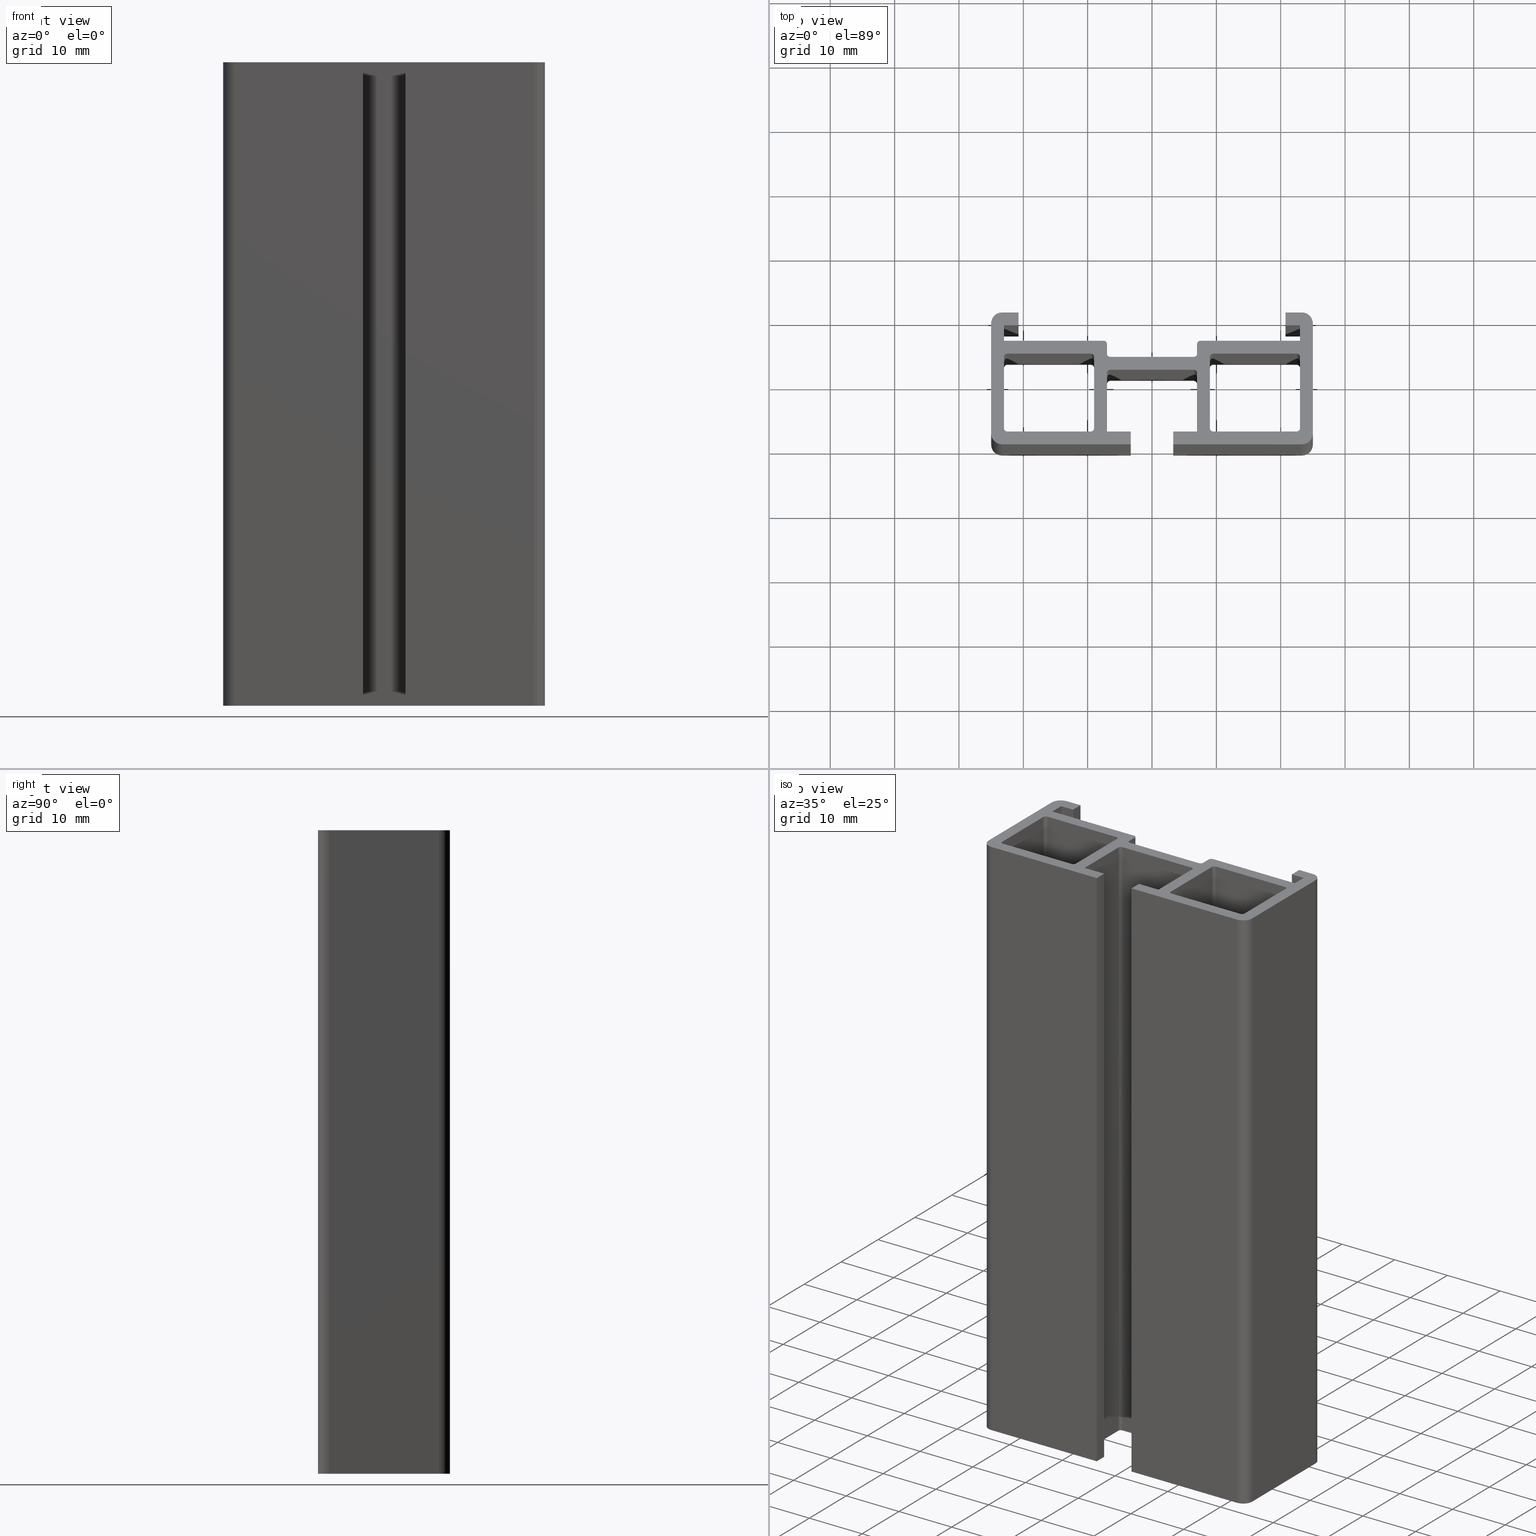
[diagram: canonical four-view strip — front | top / right | iso, engineering-drawing reading convention]
A machine part, canonical four-view strip (front | top / right | iso — engineering-drawing reading convention). The complete STEP part file that produces these views, byte-faithful:
ISO-10303-21;
HEADER;
/* Generated by software containing ST-Developer
 * from STEP Tools, Inc. (www.steptools.com) 
 */

FILE_DESCRIPTION(
/* description */ (''),
/* implementation_level */ '2;1');

FILE_NAME(
/* name */ 
'Q:\\Catalogo\\1_Profili Dierre\\Per Download Web\\Complementari\\APRD
D0000142.stp',
/* time_stamp */ '2017-07-14T15:32:17+02:00',
/* author */ ('fzagni'),
/* organization */ (''),
/* preprocessor_version */ 'ST-DEVELOPER v16.1',
/* originating_system */ 'Autodesk Inventor 2016',
/* authorisation */ '');

FILE_SCHEMA (('AUTOMOTIVE_DESIGN { 1 0 10303 214 3 1 1 }'));
ENDSEC;

DATA;
#10=MECHANICAL_DESIGN_GEOMETRIC_PRESENTATION_REPRESENTATION('',(#13),#1733);
#11=SHAPE_REPRESENTATION_RELATIONSHIP('SRR','None',#1742,#12);
#12=ADVANCED_BREP_SHAPE_REPRESENTATION('',(#14),#1732);
#13=STYLED_ITEM('',(#1751),#14);
#14=MANIFOLD_SOLID_BREP('Solido1',#1045);
#15=FACE_BOUND('',#156,.T.);
#16=FACE_BOUND('',#157,.T.);
#17=FACE_BOUND('',#159,.T.);
#18=FACE_BOUND('',#160,.T.);
#19=PLANE('',#1050);
#20=PLANE('',#1054);
#21=PLANE('',#1058);
#22=PLANE('',#1062);
#23=PLANE('',#1066);
#24=PLANE('',#1070);
#25=PLANE('',#1074);
#26=PLANE('',#1078);
#27=PLANE('',#1082);
#28=PLANE('',#1086);
#29=PLANE('',#1087);
#30=PLANE('',#1088);
#31=PLANE('',#1089);
#32=PLANE('',#1090);
#33=PLANE('',#1094);
#34=PLANE('',#1098);
#35=PLANE('',#1102);
#36=PLANE('',#1106);
#37=PLANE('',#1107);
#38=PLANE('',#1108);
#39=PLANE('',#1109);
#40=PLANE('',#1110);
#41=PLANE('',#1114);
#42=PLANE('',#1118);
#43=PLANE('',#1119);
#44=PLANE('',#1120);
#45=PLANE('',#1121);
#46=PLANE('',#1125);
#47=PLANE('',#1129);
#48=PLANE('',#1130);
#49=PLANE('',#1131);
#50=PLANE('',#1132);
#51=PLANE('',#1133);
#52=PLANE('',#1134);
#53=FACE_OUTER_BOUND('',#105,.T.);
#54=FACE_OUTER_BOUND('',#106,.T.);
#55=FACE_OUTER_BOUND('',#107,.T.);
#56=FACE_OUTER_BOUND('',#108,.T.);
#57=FACE_OUTER_BOUND('',#109,.T.);
#58=FACE_OUTER_BOUND('',#110,.T.);
#59=FACE_OUTER_BOUND('',#111,.T.);
#60=FACE_OUTER_BOUND('',#112,.T.);
#61=FACE_OUTER_BOUND('',#113,.T.);
#62=FACE_OUTER_BOUND('',#114,.T.);
#63=FACE_OUTER_BOUND('',#115,.T.);
#64=FACE_OUTER_BOUND('',#116,.T.);
#65=FACE_OUTER_BOUND('',#117,.T.);
#66=FACE_OUTER_BOUND('',#118,.T.);
#67=FACE_OUTER_BOUND('',#119,.T.);
#68=FACE_OUTER_BOUND('',#120,.T.);
#69=FACE_OUTER_BOUND('',#121,.T.);
#70=FACE_OUTER_BOUND('',#122,.T.);
#71=FACE_OUTER_BOUND('',#123,.T.);
#72=FACE_OUTER_BOUND('',#124,.T.);
#73=FACE_OUTER_BOUND('',#125,.T.);
#74=FACE_OUTER_BOUND('',#126,.T.);
#75=FACE_OUTER_BOUND('',#127,.T.);
#76=FACE_OUTER_BOUND('',#128,.T.);
#77=FACE_OUTER_BOUND('',#129,.T.);
#78=FACE_OUTER_BOUND('',#130,.T.);
#79=FACE_OUTER_BOUND('',#131,.T.);
#80=FACE_OUTER_BOUND('',#132,.T.);
#81=FACE_OUTER_BOUND('',#133,.T.);
#82=FACE_OUTER_BOUND('',#134,.T.);
#83=FACE_OUTER_BOUND('',#135,.T.);
#84=FACE_OUTER_BOUND('',#136,.T.);
#85=FACE_OUTER_BOUND('',#137,.T.);
#86=FACE_OUTER_BOUND('',#138,.T.);
#87=FACE_OUTER_BOUND('',#139,.T.);
#88=FACE_OUTER_BOUND('',#140,.T.);
#89=FACE_OUTER_BOUND('',#141,.T.);
#90=FACE_OUTER_BOUND('',#142,.T.);
#91=FACE_OUTER_BOUND('',#143,.T.);
#92=FACE_OUTER_BOUND('',#144,.T.);
#93=FACE_OUTER_BOUND('',#145,.T.);
#94=FACE_OUTER_BOUND('',#146,.T.);
#95=FACE_OUTER_BOUND('',#147,.T.);
#96=FACE_OUTER_BOUND('',#148,.T.);
#97=FACE_OUTER_BOUND('',#149,.T.);
#98=FACE_OUTER_BOUND('',#150,.T.);
#99=FACE_OUTER_BOUND('',#151,.T.);
#100=FACE_OUTER_BOUND('',#152,.T.);
#101=FACE_OUTER_BOUND('',#153,.T.);
#102=FACE_OUTER_BOUND('',#154,.T.);
#103=FACE_OUTER_BOUND('',#155,.T.);
#104=FACE_OUTER_BOUND('',#158,.T.);
#105=EDGE_LOOP('',(#675,#676,#677,#678));
#106=EDGE_LOOP('',(#679,#680,#681,#682));
#107=EDGE_LOOP('',(#683,#684,#685,#686));
#108=EDGE_LOOP('',(#687,#688,#689,#690));
#109=EDGE_LOOP('',(#691,#692,#693,#694));
#110=EDGE_LOOP('',(#695,#696,#697,#698));
#111=EDGE_LOOP('',(#699,#700,#701,#702));
#112=EDGE_LOOP('',(#703,#704,#705,#706));
#113=EDGE_LOOP('',(#707,#708,#709,#710));
#114=EDGE_LOOP('',(#711,#712,#713,#714));
#115=EDGE_LOOP('',(#715,#716,#717,#718));
#116=EDGE_LOOP('',(#719,#720,#721,#722));
#117=EDGE_LOOP('',(#723,#724,#725,#726));
#118=EDGE_LOOP('',(#727,#728,#729,#730));
#119=EDGE_LOOP('',(#731,#732,#733,#734));
#120=EDGE_LOOP('',(#735,#736,#737,#738));
#121=EDGE_LOOP('',(#739,#740,#741,#742));
#122=EDGE_LOOP('',(#743,#744,#745,#746));
#123=EDGE_LOOP('',(#747,#748,#749,#750));
#124=EDGE_LOOP('',(#751,#752,#753,#754));
#125=EDGE_LOOP('',(#755,#756,#757,#758));
#126=EDGE_LOOP('',(#759,#760,#761,#762));
#127=EDGE_LOOP('',(#763,#764,#765,#766));
#128=EDGE_LOOP('',(#767,#768,#769,#770));
#129=EDGE_LOOP('',(#771,#772,#773,#774));
#130=EDGE_LOOP('',(#775,#776,#777,#778));
#131=EDGE_LOOP('',(#779,#780,#781,#782));
#132=EDGE_LOOP('',(#783,#784,#785,#786));
#133=EDGE_LOOP('',(#787,#788,#789,#790));
#134=EDGE_LOOP('',(#791,#792,#793,#794));
#135=EDGE_LOOP('',(#795,#796,#797,#798));
#136=EDGE_LOOP('',(#799,#800,#801,#802));
#137=EDGE_LOOP('',(#803,#804,#805,#806));
#138=EDGE_LOOP('',(#807,#808,#809,#810));
#139=EDGE_LOOP('',(#811,#812,#813,#814));
#140=EDGE_LOOP('',(#815,#816,#817,#818));
#141=EDGE_LOOP('',(#819,#820,#821,#822));
#142=EDGE_LOOP('',(#823,#824,#825,#826));
#143=EDGE_LOOP('',(#827,#828,#829,#830));
#144=EDGE_LOOP('',(#831,#832,#833,#834));
#145=EDGE_LOOP('',(#835,#836,#837,#838));
#146=EDGE_LOOP('',(#839,#840,#841,#842));
#147=EDGE_LOOP('',(#843,#844,#845,#846));
#148=EDGE_LOOP('',(#847,#848,#849,#850));
#149=EDGE_LOOP('',(#851,#852,#853,#854));
#150=EDGE_LOOP('',(#855,#856,#857,#858));
#151=EDGE_LOOP('',(#859,#860,#861,#862));
#152=EDGE_LOOP('',(#863,#864,#865,#866));
#153=EDGE_LOOP('',(#867,#868,#869,#870));
#154=EDGE_LOOP('',(#871,#872,#873,#874));
#155=EDGE_LOOP('',(#875,#876,#877,#878,#879,#880,#881,#882,#883,#884,#885,
#886,#887,#888,#889,#890,#891,#892,#893,#894,#895,#896,#897,#898,#899,#900,
#901,#902,#903,#904,#905,#906,#907,#908));
#156=EDGE_LOOP('',(#909,#910,#911,#912,#913,#914,#915,#916));
#157=EDGE_LOOP('',(#917,#918,#919,#920,#921,#922,#923,#924));
#158=EDGE_LOOP('',(#925,#926,#927,#928,#929,#930,#931,#932,#933,#934,#935,
#936,#937,#938,#939,#940,#941,#942,#943,#944,#945,#946,#947,#948,#949,#950,
#951,#952,#953,#954,#955,#956,#957,#958));
#159=EDGE_LOOP('',(#959,#960,#961,#962,#963,#964,#965,#966));
#160=EDGE_LOOP('',(#967,#968,#969,#970,#971,#972,#973,#974));
#161=LINE('',#1433,#275);
#162=LINE('',#1436,#276);
#163=LINE('',#1439,#277);
#164=LINE('',#1441,#278);
#165=LINE('',#1442,#279);
#166=LINE('',#1447,#280);
#167=LINE('',#1451,#281);
#168=LINE('',#1453,#282);
#169=LINE('',#1454,#283);
#170=LINE('',#1459,#284);
#171=LINE('',#1463,#285);
#172=LINE('',#1465,#286);
#173=LINE('',#1466,#287);
#174=LINE('',#1471,#288);
#175=LINE('',#1474,#289);
#176=LINE('',#1475,#290);
#177=LINE('',#1481,#291);
#178=LINE('',#1484,#292);
#179=LINE('',#1487,#293);
#180=LINE('',#1489,#294);
#181=LINE('',#1490,#295);
#182=LINE('',#1495,#296);
#183=LINE('',#1499,#297);
#184=LINE('',#1501,#298);
#185=LINE('',#1502,#299);
#186=LINE('',#1507,#300);
#187=LINE('',#1511,#301);
#188=LINE('',#1513,#302);
#189=LINE('',#1514,#303);
#190=LINE('',#1519,#304);
#191=LINE('',#1522,#305);
#192=LINE('',#1523,#306);
#193=LINE('',#1529,#307);
#194=LINE('',#1532,#308);
#195=LINE('',#1535,#309);
#196=LINE('',#1537,#310);
#197=LINE('',#1538,#311);
#198=LINE('',#1544,#312);
#199=LINE('',#1547,#313);
#200=LINE('',#1549,#314);
#201=LINE('',#1550,#315);
#202=LINE('',#1553,#316);
#203=LINE('',#1555,#317);
#204=LINE('',#1556,#318);
#205=LINE('',#1559,#319);
#206=LINE('',#1561,#320);
#207=LINE('',#1562,#321);
#208=LINE('',#1565,#322);
#209=LINE('',#1567,#323);
#210=LINE('',#1568,#324);
#211=LINE('',#1571,#325);
#212=LINE('',#1573,#326);
#213=LINE('',#1574,#327);
#214=LINE('',#1580,#328);
#215=LINE('',#1583,#329);
#216=LINE('',#1585,#330);
#217=LINE('',#1586,#331);
#218=LINE('',#1592,#332);
#219=LINE('',#1595,#333);
#220=LINE('',#1597,#334);
#221=LINE('',#1598,#335);
#222=LINE('',#1604,#336);
#223=LINE('',#1607,#337);
#224=LINE('',#1609,#338);
#225=LINE('',#1610,#339);
#226=LINE('',#1616,#340);
#227=LINE('',#1619,#341);
#228=LINE('',#1621,#342);
#229=LINE('',#1622,#343);
#230=LINE('',#1625,#344);
#231=LINE('',#1627,#345);
#232=LINE('',#1628,#346);
#233=LINE('',#1631,#347);
#234=LINE('',#1633,#348);
#235=LINE('',#1634,#349);
#236=LINE('',#1637,#350);
#237=LINE('',#1639,#351);
#238=LINE('',#1640,#352);
#239=LINE('',#1643,#353);
#240=LINE('',#1645,#354);
#241=LINE('',#1646,#355);
#242=LINE('',#1652,#356);
#243=LINE('',#1655,#357);
#244=LINE('',#1657,#358);
#245=LINE('',#1658,#359);
#246=LINE('',#1664,#360);
#247=LINE('',#1667,#361);
#248=LINE('',#1669,#362);
#249=LINE('',#1670,#363);
#250=LINE('',#1673,#364);
#251=LINE('',#1675,#365);
#252=LINE('',#1676,#366);
#253=LINE('',#1679,#367);
#254=LINE('',#1681,#368);
#255=LINE('',#1682,#369);
#256=LINE('',#1685,#370);
#257=LINE('',#1687,#371);
#258=LINE('',#1688,#372);
#259=LINE('',#1694,#373);
#260=LINE('',#1697,#374);
#261=LINE('',#1699,#375);
#262=LINE('',#1700,#376);
#263=LINE('',#1706,#377);
#264=LINE('',#1709,#378);
#265=LINE('',#1711,#379);
#266=LINE('',#1712,#380);
#267=LINE('',#1715,#381);
#268=LINE('',#1717,#382);
#269=LINE('',#1718,#383);
#270=LINE('',#1721,#384);
#271=LINE('',#1723,#385);
#272=LINE('',#1724,#386);
#273=LINE('',#1726,#387);
#274=LINE('',#1727,#388);
#275=VECTOR('',#1141,100.);
#276=VECTOR('',#1144,100.);
#277=VECTOR('',#1147,11.1);
#278=VECTOR('',#1148,100.);
#279=VECTOR('',#1149,11.1);
#280=VECTOR('',#1154,100.);
#281=VECTOR('',#1159,13.);
#282=VECTOR('',#1160,100.);
#283=VECTOR('',#1161,13.);
#284=VECTOR('',#1166,100.);
#285=VECTOR('',#1171,11.1);
#286=VECTOR('',#1172,100.);
#287=VECTOR('',#1173,11.1);
#288=VECTOR('',#1178,100.);
#289=VECTOR('',#1183,13.);
#290=VECTOR('',#1184,13.);
#291=VECTOR('',#1189,100.);
#292=VECTOR('',#1192,100.);
#293=VECTOR('',#1195,11.1);
#294=VECTOR('',#1196,100.);
#295=VECTOR('',#1197,11.1);
#296=VECTOR('',#1202,100.);
#297=VECTOR('',#1207,13.);
#298=VECTOR('',#1208,100.);
#299=VECTOR('',#1209,13.);
#300=VECTOR('',#1214,100.);
#301=VECTOR('',#1219,11.1);
#302=VECTOR('',#1220,100.);
#303=VECTOR('',#1221,11.1);
#304=VECTOR('',#1226,100.);
#305=VECTOR('',#1231,13.);
#306=VECTOR('',#1232,13.);
#307=VECTOR('',#1237,100.);
#308=VECTOR('',#1240,100.);
#309=VECTOR('',#1243,17.1);
#310=VECTOR('',#1244,17.1);
#311=VECTOR('',#1245,100.);
#312=VECTOR('',#1252,100.);
#313=VECTOR('',#1255,2.55000000000003);
#314=VECTOR('',#1256,2.55000000000003);
#315=VECTOR('',#1257,100.);
#316=VECTOR('',#1260,2.00000000000001);
#317=VECTOR('',#1261,2.00000000000001);
#318=VECTOR('',#1262,100.);
#319=VECTOR('',#1265,2.25000000000001);
#320=VECTOR('',#1266,2.25000000000001);
#321=VECTOR('',#1267,100.);
#322=VECTOR('',#1270,2.4);
#323=VECTOR('',#1271,2.4);
#324=VECTOR('',#1272,100.);
#325=VECTOR('',#1275,15.5);
#326=VECTOR('',#1276,15.5);
#327=VECTOR('',#1277,100.);
#328=VECTOR('',#1284,100.);
#329=VECTOR('',#1287,1.50000000872664);
#330=VECTOR('',#1288,1.50000000872664);
#331=VECTOR('',#1289,100.);
#332=VECTOR('',#1296,100.);
#333=VECTOR('',#1299,13.);
#334=VECTOR('',#1300,13.);
#335=VECTOR('',#1301,100.);
#336=VECTOR('',#1308,100.);
#337=VECTOR('',#1311,1.49999999127337);
#338=VECTOR('',#1312,1.49999999127337);
#339=VECTOR('',#1313,100.);
#340=VECTOR('',#1320,100.);
#341=VECTOR('',#1323,15.5);
#342=VECTOR('',#1324,15.5);
#343=VECTOR('',#1325,100.);
#344=VECTOR('',#1328,2.4);
#345=VECTOR('',#1329,2.4);
#346=VECTOR('',#1330,100.);
#347=VECTOR('',#1333,2.25);
#348=VECTOR('',#1334,2.25);
#349=VECTOR('',#1335,100.);
#350=VECTOR('',#1338,2.00000000000001);
#351=VECTOR('',#1339,2.00000000000001);
#352=VECTOR('',#1340,100.);
#353=VECTOR('',#1343,2.54999999999999);
#354=VECTOR('',#1344,2.54999999999999);
#355=VECTOR('',#1345,100.);
#356=VECTOR('',#1352,100.);
#357=VECTOR('',#1355,17.1);
#358=VECTOR('',#1356,17.1);
#359=VECTOR('',#1357,100.);
#360=VECTOR('',#1364,100.);
#361=VECTOR('',#1367,20.);
#362=VECTOR('',#1368,20.);
#363=VECTOR('',#1369,100.);
#364=VECTOR('',#1372,1.99999999999999);
#365=VECTOR('',#1373,1.99999999999999);
#366=VECTOR('',#1374,100.);
#367=VECTOR('',#1377,3.70000000000001);
#368=VECTOR('',#1378,3.70000000000001);
#369=VECTOR('',#1379,100.);
#370=VECTOR('',#1382,9.10000049999999);
#371=VECTOR('',#1383,9.10000049999999);
#372=VECTOR('',#1384,100.);
#373=VECTOR('',#1391,100.);
#374=VECTOR('',#1394,13.);
#375=VECTOR('',#1395,13.);
#376=VECTOR('',#1396,100.);
#377=VECTOR('',#1403,100.);
#378=VECTOR('',#1406,9.10000049999999);
#379=VECTOR('',#1407,9.10000049999999);
#380=VECTOR('',#1408,100.);
#381=VECTOR('',#1411,3.69999999999999);
#382=VECTOR('',#1412,3.69999999999999);
#383=VECTOR('',#1413,100.);
#384=VECTOR('',#1416,1.99999999999999);
#385=VECTOR('',#1417,1.99999999999999);
#386=VECTOR('',#1418,100.);
#387=VECTOR('',#1421,20.);
#388=VECTOR('',#1422,20.);
#389=CIRCLE('',#1048,0.5);
#390=CIRCLE('',#1049,0.5);
#391=CIRCLE('',#1052,0.5);
#392=CIRCLE('',#1053,0.5);
#393=CIRCLE('',#1056,0.5);
#394=CIRCLE('',#1057,0.5);
#395=CIRCLE('',#1060,0.5);
#396=CIRCLE('',#1061,0.5);
#397=CIRCLE('',#1064,0.5);
#398=CIRCLE('',#1065,0.5);
#399=CIRCLE('',#1068,0.5);
#400=CIRCLE('',#1069,0.5);
#401=CIRCLE('',#1072,0.5);
#402=CIRCLE('',#1073,0.5);
#403=CIRCLE('',#1076,0.5);
#404=CIRCLE('',#1077,0.5);
#405=CIRCLE('',#1080,1.7);
#406=CIRCLE('',#1081,1.7);
#407=CIRCLE('',#1084,1.7);
#408=CIRCLE('',#1085,1.7);
#409=CIRCLE('',#1092,0.5);
#410=CIRCLE('',#1093,0.5);
#411=CIRCLE('',#1096,0.5);
#412=CIRCLE('',#1097,0.5);
#413=CIRCLE('',#1100,0.5);
#414=CIRCLE('',#1101,0.5);
#415=CIRCLE('',#1104,0.5);
#416=CIRCLE('',#1105,0.5);
#417=CIRCLE('',#1112,1.7);
#418=CIRCLE('',#1113,1.7);
#419=CIRCLE('',#1116,1.7);
#420=CIRCLE('',#1117,1.7);
#421=CIRCLE('',#1123,0.5);
#422=CIRCLE('',#1124,0.5);
#423=CIRCLE('',#1127,0.5);
#424=CIRCLE('',#1128,0.5);
#425=VERTEX_POINT('',#1429);
#426=VERTEX_POINT('',#1430);
#427=VERTEX_POINT('',#1432);
#428=VERTEX_POINT('',#1434);
#429=VERTEX_POINT('',#1438);
#430=VERTEX_POINT('',#1440);
#431=VERTEX_POINT('',#1444);
#432=VERTEX_POINT('',#1446);
#433=VERTEX_POINT('',#1450);
#434=VERTEX_POINT('',#1452);
#435=VERTEX_POINT('',#1456);
#436=VERTEX_POINT('',#1458);
#437=VERTEX_POINT('',#1462);
#438=VERTEX_POINT('',#1464);
#439=VERTEX_POINT('',#1468);
#440=VERTEX_POINT('',#1470);
#441=VERTEX_POINT('',#1477);
#442=VERTEX_POINT('',#1478);
#443=VERTEX_POINT('',#1480);
#444=VERTEX_POINT('',#1482);
#445=VERTEX_POINT('',#1486);
#446=VERTEX_POINT('',#1488);
#447=VERTEX_POINT('',#1492);
#448=VERTEX_POINT('',#1494);
#449=VERTEX_POINT('',#1498);
#450=VERTEX_POINT('',#1500);
#451=VERTEX_POINT('',#1504);
#452=VERTEX_POINT('',#1506);
#453=VERTEX_POINT('',#1510);
#454=VERTEX_POINT('',#1512);
#455=VERTEX_POINT('',#1516);
#456=VERTEX_POINT('',#1518);
#457=VERTEX_POINT('',#1525);
#458=VERTEX_POINT('',#1526);
#459=VERTEX_POINT('',#1528);
#460=VERTEX_POINT('',#1530);
#461=VERTEX_POINT('',#1534);
#462=VERTEX_POINT('',#1536);
#463=VERTEX_POINT('',#1540);
#464=VERTEX_POINT('',#1542);
#465=VERTEX_POINT('',#1546);
#466=VERTEX_POINT('',#1548);
#467=VERTEX_POINT('',#1552);
#468=VERTEX_POINT('',#1554);
#469=VERTEX_POINT('',#1558);
#470=VERTEX_POINT('',#1560);
#471=VERTEX_POINT('',#1564);
#472=VERTEX_POINT('',#1566);
#473=VERTEX_POINT('',#1570);
#474=VERTEX_POINT('',#1572);
#475=VERTEX_POINT('',#1576);
#476=VERTEX_POINT('',#1578);
#477=VERTEX_POINT('',#1582);
#478=VERTEX_POINT('',#1584);
#479=VERTEX_POINT('',#1588);
#480=VERTEX_POINT('',#1590);
#481=VERTEX_POINT('',#1594);
#482=VERTEX_POINT('',#1596);
#483=VERTEX_POINT('',#1600);
#484=VERTEX_POINT('',#1602);
#485=VERTEX_POINT('',#1606);
#486=VERTEX_POINT('',#1608);
#487=VERTEX_POINT('',#1612);
#488=VERTEX_POINT('',#1614);
#489=VERTEX_POINT('',#1618);
#490=VERTEX_POINT('',#1620);
#491=VERTEX_POINT('',#1624);
#492=VERTEX_POINT('',#1626);
#493=VERTEX_POINT('',#1630);
#494=VERTEX_POINT('',#1632);
#495=VERTEX_POINT('',#1636);
#496=VERTEX_POINT('',#1638);
#497=VERTEX_POINT('',#1642);
#498=VERTEX_POINT('',#1644);
#499=VERTEX_POINT('',#1648);
#500=VERTEX_POINT('',#1650);
#501=VERTEX_POINT('',#1654);
#502=VERTEX_POINT('',#1656);
#503=VERTEX_POINT('',#1660);
#504=VERTEX_POINT('',#1662);
#505=VERTEX_POINT('',#1666);
#506=VERTEX_POINT('',#1668);
#507=VERTEX_POINT('',#1672);
#508=VERTEX_POINT('',#1674);
#509=VERTEX_POINT('',#1678);
#510=VERTEX_POINT('',#1680);
#511=VERTEX_POINT('',#1684);
#512=VERTEX_POINT('',#1686);
#513=VERTEX_POINT('',#1690);
#514=VERTEX_POINT('',#1692);
#515=VERTEX_POINT('',#1696);
#516=VERTEX_POINT('',#1698);
#517=VERTEX_POINT('',#1702);
#518=VERTEX_POINT('',#1704);
#519=VERTEX_POINT('',#1708);
#520=VERTEX_POINT('',#1710);
#521=VERTEX_POINT('',#1714);
#522=VERTEX_POINT('',#1716);
#523=VERTEX_POINT('',#1720);
#524=VERTEX_POINT('',#1722);
#525=EDGE_CURVE('',#425,#426,#389,.T.);
#526=EDGE_CURVE('',#425,#427,#161,.T.);
#527=EDGE_CURVE('',#428,#427,#390,.T.);
#528=EDGE_CURVE('',#426,#428,#162,.T.);
#529=EDGE_CURVE('',#429,#425,#163,.T.);
#530=EDGE_CURVE('',#429,#430,#164,.T.);
#531=EDGE_CURVE('',#427,#430,#165,.T.);
#532=EDGE_CURVE('',#431,#429,#391,.T.);
#533=EDGE_CURVE('',#431,#432,#166,.T.);
#534=EDGE_CURVE('',#430,#432,#392,.T.);
#535=EDGE_CURVE('',#433,#431,#167,.T.);
#536=EDGE_CURVE('',#433,#434,#168,.T.);
#537=EDGE_CURVE('',#432,#434,#169,.T.);
#538=EDGE_CURVE('',#435,#433,#393,.T.);
#539=EDGE_CURVE('',#435,#436,#170,.T.);
#540=EDGE_CURVE('',#434,#436,#394,.T.);
#541=EDGE_CURVE('',#437,#435,#171,.T.);
#542=EDGE_CURVE('',#437,#438,#172,.T.);
#543=EDGE_CURVE('',#436,#438,#173,.T.);
#544=EDGE_CURVE('',#439,#437,#395,.T.);
#545=EDGE_CURVE('',#439,#440,#174,.T.);
#546=EDGE_CURVE('',#438,#440,#396,.T.);
#547=EDGE_CURVE('',#426,#439,#175,.T.);
#548=EDGE_CURVE('',#440,#428,#176,.T.);
#549=EDGE_CURVE('',#441,#442,#397,.T.);
#550=EDGE_CURVE('',#441,#443,#177,.T.);
#551=EDGE_CURVE('',#444,#443,#398,.T.);
#552=EDGE_CURVE('',#442,#444,#178,.T.);
#553=EDGE_CURVE('',#445,#441,#179,.T.);
#554=EDGE_CURVE('',#445,#446,#180,.T.);
#555=EDGE_CURVE('',#443,#446,#181,.T.);
#556=EDGE_CURVE('',#447,#445,#399,.T.);
#557=EDGE_CURVE('',#447,#448,#182,.T.);
#558=EDGE_CURVE('',#446,#448,#400,.T.);
#559=EDGE_CURVE('',#449,#447,#183,.T.);
#560=EDGE_CURVE('',#449,#450,#184,.T.);
#561=EDGE_CURVE('',#448,#450,#185,.T.);
#562=EDGE_CURVE('',#451,#449,#401,.T.);
#563=EDGE_CURVE('',#451,#452,#186,.T.);
#564=EDGE_CURVE('',#450,#452,#402,.T.);
#565=EDGE_CURVE('',#453,#451,#187,.T.);
#566=EDGE_CURVE('',#453,#454,#188,.T.);
#567=EDGE_CURVE('',#452,#454,#189,.T.);
#568=EDGE_CURVE('',#455,#453,#403,.T.);
#569=EDGE_CURVE('',#455,#456,#190,.T.);
#570=EDGE_CURVE('',#454,#456,#404,.T.);
#571=EDGE_CURVE('',#442,#455,#191,.T.);
#572=EDGE_CURVE('',#456,#444,#192,.T.);
#573=EDGE_CURVE('',#457,#458,#405,.T.);
#574=EDGE_CURVE('',#458,#459,#193,.T.);
#575=EDGE_CURVE('',#460,#459,#406,.T.);
#576=EDGE_CURVE('',#457,#460,#194,.T.);
#577=EDGE_CURVE('',#461,#457,#195,.T.);
#578=EDGE_CURVE('',#462,#460,#196,.T.);
#579=EDGE_CURVE('',#461,#462,#197,.T.);
#580=EDGE_CURVE('',#463,#461,#407,.T.);
#581=EDGE_CURVE('',#464,#462,#408,.T.);
#582=EDGE_CURVE('',#463,#464,#198,.T.);
#583=EDGE_CURVE('',#465,#463,#199,.T.);
#584=EDGE_CURVE('',#466,#464,#200,.T.);
#585=EDGE_CURVE('',#465,#466,#201,.T.);
#586=EDGE_CURVE('',#467,#465,#202,.T.);
#587=EDGE_CURVE('',#468,#466,#203,.T.);
#588=EDGE_CURVE('',#467,#468,#204,.T.);
#589=EDGE_CURVE('',#469,#467,#205,.T.);
#590=EDGE_CURVE('',#470,#468,#206,.T.);
#591=EDGE_CURVE('',#469,#470,#207,.T.);
#592=EDGE_CURVE('',#471,#469,#208,.T.);
#593=EDGE_CURVE('',#472,#470,#209,.T.);
#594=EDGE_CURVE('',#471,#472,#210,.T.);
#595=EDGE_CURVE('',#473,#471,#211,.T.);
#596=EDGE_CURVE('',#474,#472,#212,.T.);
#597=EDGE_CURVE('',#473,#474,#213,.T.);
#598=EDGE_CURVE('',#475,#473,#409,.T.);
#599=EDGE_CURVE('',#476,#474,#410,.T.);
#600=EDGE_CURVE('',#475,#476,#214,.T.);
#601=EDGE_CURVE('',#477,#475,#215,.T.);
#602=EDGE_CURVE('',#478,#476,#216,.T.);
#603=EDGE_CURVE('',#477,#478,#217,.T.);
#604=EDGE_CURVE('',#479,#477,#411,.T.);
#605=EDGE_CURVE('',#480,#478,#412,.T.);
#606=EDGE_CURVE('',#479,#480,#218,.T.);
#607=EDGE_CURVE('',#481,#479,#219,.T.);
#608=EDGE_CURVE('',#482,#480,#220,.T.);
#609=EDGE_CURVE('',#481,#482,#221,.T.);
#610=EDGE_CURVE('',#483,#481,#413,.T.);
#611=EDGE_CURVE('',#484,#482,#414,.T.);
#612=EDGE_CURVE('',#483,#484,#222,.T.);
#613=EDGE_CURVE('',#485,#483,#223,.T.);
#614=EDGE_CURVE('',#486,#484,#224,.T.);
#615=EDGE_CURVE('',#485,#486,#225,.T.);
#616=EDGE_CURVE('',#487,#485,#415,.T.);
#617=EDGE_CURVE('',#488,#486,#416,.T.);
#618=EDGE_CURVE('',#487,#488,#226,.T.);
#619=EDGE_CURVE('',#489,#487,#227,.T.);
#620=EDGE_CURVE('',#490,#488,#228,.T.);
#621=EDGE_CURVE('',#489,#490,#229,.T.);
#622=EDGE_CURVE('',#491,#489,#230,.T.);
#623=EDGE_CURVE('',#492,#490,#231,.T.);
#624=EDGE_CURVE('',#491,#492,#232,.T.);
#625=EDGE_CURVE('',#493,#491,#233,.T.);
#626=EDGE_CURVE('',#494,#492,#234,.T.);
#627=EDGE_CURVE('',#493,#494,#235,.T.);
#628=EDGE_CURVE('',#495,#493,#236,.T.);
#629=EDGE_CURVE('',#496,#494,#237,.T.);
#630=EDGE_CURVE('',#495,#496,#238,.T.);
#631=EDGE_CURVE('',#497,#495,#239,.T.);
#632=EDGE_CURVE('',#498,#496,#240,.T.);
#633=EDGE_CURVE('',#497,#498,#241,.T.);
#634=EDGE_CURVE('',#499,#497,#417,.T.);
#635=EDGE_CURVE('',#500,#498,#418,.T.);
#636=EDGE_CURVE('',#499,#500,#242,.T.);
#637=EDGE_CURVE('',#501,#499,#243,.T.);
#638=EDGE_CURVE('',#502,#500,#244,.T.);
#639=EDGE_CURVE('',#501,#502,#245,.T.);
#640=EDGE_CURVE('',#503,#501,#419,.T.);
#641=EDGE_CURVE('',#504,#502,#420,.T.);
#642=EDGE_CURVE('',#503,#504,#246,.T.);
#643=EDGE_CURVE('',#505,#503,#247,.T.);
#644=EDGE_CURVE('',#506,#504,#248,.T.);
#645=EDGE_CURVE('',#505,#506,#249,.T.);
#646=EDGE_CURVE('',#507,#505,#250,.T.);
#647=EDGE_CURVE('',#508,#506,#251,.T.);
#648=EDGE_CURVE('',#507,#508,#252,.T.);
#649=EDGE_CURVE('',#509,#507,#253,.T.);
#650=EDGE_CURVE('',#510,#508,#254,.T.);
#651=EDGE_CURVE('',#509,#510,#255,.T.);
#652=EDGE_CURVE('',#511,#509,#256,.T.);
#653=EDGE_CURVE('',#512,#510,#257,.T.);
#654=EDGE_CURVE('',#511,#512,#258,.T.);
#655=EDGE_CURVE('',#513,#511,#421,.T.);
#656=EDGE_CURVE('',#514,#512,#422,.T.);
#657=EDGE_CURVE('',#513,#514,#259,.T.);
#658=EDGE_CURVE('',#515,#513,#260,.T.);
#659=EDGE_CURVE('',#516,#514,#261,.T.);
#660=EDGE_CURVE('',#515,#516,#262,.T.);
#661=EDGE_CURVE('',#517,#515,#423,.T.);
#662=EDGE_CURVE('',#518,#516,#424,.T.);
#663=EDGE_CURVE('',#517,#518,#263,.T.);
#664=EDGE_CURVE('',#519,#517,#264,.T.);
#665=EDGE_CURVE('',#520,#518,#265,.T.);
#666=EDGE_CURVE('',#519,#520,#266,.T.);
#667=EDGE_CURVE('',#521,#519,#267,.T.);
#668=EDGE_CURVE('',#522,#520,#268,.T.);
#669=EDGE_CURVE('',#521,#522,#269,.T.);
#670=EDGE_CURVE('',#523,#521,#270,.T.);
#671=EDGE_CURVE('',#524,#522,#271,.T.);
#672=EDGE_CURVE('',#523,#524,#272,.T.);
#673=EDGE_CURVE('',#458,#523,#273,.T.);
#674=EDGE_CURVE('',#459,#524,#274,.T.);
#675=ORIENTED_EDGE('',*,*,#525,.F.);
#676=ORIENTED_EDGE('',*,*,#526,.T.);
#677=ORIENTED_EDGE('',*,*,#527,.F.);
#678=ORIENTED_EDGE('',*,*,#528,.F.);
#679=ORIENTED_EDGE('',*,*,#529,.F.);
#680=ORIENTED_EDGE('',*,*,#530,.T.);
#681=ORIENTED_EDGE('',*,*,#531,.F.);
#682=ORIENTED_EDGE('',*,*,#526,.F.);
#683=ORIENTED_EDGE('',*,*,#532,.F.);
#684=ORIENTED_EDGE('',*,*,#533,.T.);
#685=ORIENTED_EDGE('',*,*,#534,.F.);
#686=ORIENTED_EDGE('',*,*,#530,.F.);
#687=ORIENTED_EDGE('',*,*,#535,.F.);
#688=ORIENTED_EDGE('',*,*,#536,.T.);
#689=ORIENTED_EDGE('',*,*,#537,.F.);
#690=ORIENTED_EDGE('',*,*,#533,.F.);
#691=ORIENTED_EDGE('',*,*,#538,.F.);
#692=ORIENTED_EDGE('',*,*,#539,.T.);
#693=ORIENTED_EDGE('',*,*,#540,.F.);
#694=ORIENTED_EDGE('',*,*,#536,.F.);
#695=ORIENTED_EDGE('',*,*,#541,.F.);
#696=ORIENTED_EDGE('',*,*,#542,.T.);
#697=ORIENTED_EDGE('',*,*,#543,.F.);
#698=ORIENTED_EDGE('',*,*,#539,.F.);
#699=ORIENTED_EDGE('',*,*,#544,.F.);
#700=ORIENTED_EDGE('',*,*,#545,.T.);
#701=ORIENTED_EDGE('',*,*,#546,.F.);
#702=ORIENTED_EDGE('',*,*,#542,.F.);
#703=ORIENTED_EDGE('',*,*,#547,.F.);
#704=ORIENTED_EDGE('',*,*,#528,.T.);
#705=ORIENTED_EDGE('',*,*,#548,.F.);
#706=ORIENTED_EDGE('',*,*,#545,.F.);
#707=ORIENTED_EDGE('',*,*,#549,.F.);
#708=ORIENTED_EDGE('',*,*,#550,.T.);
#709=ORIENTED_EDGE('',*,*,#551,.F.);
#710=ORIENTED_EDGE('',*,*,#552,.F.);
#711=ORIENTED_EDGE('',*,*,#553,.F.);
#712=ORIENTED_EDGE('',*,*,#554,.T.);
#713=ORIENTED_EDGE('',*,*,#555,.F.);
#714=ORIENTED_EDGE('',*,*,#550,.F.);
#715=ORIENTED_EDGE('',*,*,#556,.F.);
#716=ORIENTED_EDGE('',*,*,#557,.T.);
#717=ORIENTED_EDGE('',*,*,#558,.F.);
#718=ORIENTED_EDGE('',*,*,#554,.F.);
#719=ORIENTED_EDGE('',*,*,#559,.F.);
#720=ORIENTED_EDGE('',*,*,#560,.T.);
#721=ORIENTED_EDGE('',*,*,#561,.F.);
#722=ORIENTED_EDGE('',*,*,#557,.F.);
#723=ORIENTED_EDGE('',*,*,#562,.F.);
#724=ORIENTED_EDGE('',*,*,#563,.T.);
#725=ORIENTED_EDGE('',*,*,#564,.F.);
#726=ORIENTED_EDGE('',*,*,#560,.F.);
#727=ORIENTED_EDGE('',*,*,#565,.F.);
#728=ORIENTED_EDGE('',*,*,#566,.T.);
#729=ORIENTED_EDGE('',*,*,#567,.F.);
#730=ORIENTED_EDGE('',*,*,#563,.F.);
#731=ORIENTED_EDGE('',*,*,#568,.F.);
#732=ORIENTED_EDGE('',*,*,#569,.T.);
#733=ORIENTED_EDGE('',*,*,#570,.F.);
#734=ORIENTED_EDGE('',*,*,#566,.F.);
#735=ORIENTED_EDGE('',*,*,#571,.F.);
#736=ORIENTED_EDGE('',*,*,#552,.T.);
#737=ORIENTED_EDGE('',*,*,#572,.F.);
#738=ORIENTED_EDGE('',*,*,#569,.F.);
#739=ORIENTED_EDGE('',*,*,#573,.T.);
#740=ORIENTED_EDGE('',*,*,#574,.T.);
#741=ORIENTED_EDGE('',*,*,#575,.F.);
#742=ORIENTED_EDGE('',*,*,#576,.F.);
#743=ORIENTED_EDGE('',*,*,#577,.T.);
#744=ORIENTED_EDGE('',*,*,#576,.T.);
#745=ORIENTED_EDGE('',*,*,#578,.F.);
#746=ORIENTED_EDGE('',*,*,#579,.F.);
#747=ORIENTED_EDGE('',*,*,#580,.T.);
#748=ORIENTED_EDGE('',*,*,#579,.T.);
#749=ORIENTED_EDGE('',*,*,#581,.F.);
#750=ORIENTED_EDGE('',*,*,#582,.F.);
#751=ORIENTED_EDGE('',*,*,#583,.T.);
#752=ORIENTED_EDGE('',*,*,#582,.T.);
#753=ORIENTED_EDGE('',*,*,#584,.F.);
#754=ORIENTED_EDGE('',*,*,#585,.F.);
#755=ORIENTED_EDGE('',*,*,#586,.T.);
#756=ORIENTED_EDGE('',*,*,#585,.T.);
#757=ORIENTED_EDGE('',*,*,#587,.F.);
#758=ORIENTED_EDGE('',*,*,#588,.F.);
#759=ORIENTED_EDGE('',*,*,#589,.T.);
#760=ORIENTED_EDGE('',*,*,#588,.T.);
#761=ORIENTED_EDGE('',*,*,#590,.F.);
#762=ORIENTED_EDGE('',*,*,#591,.F.);
#763=ORIENTED_EDGE('',*,*,#592,.T.);
#764=ORIENTED_EDGE('',*,*,#591,.T.);
#765=ORIENTED_EDGE('',*,*,#593,.F.);
#766=ORIENTED_EDGE('',*,*,#594,.F.);
#767=ORIENTED_EDGE('',*,*,#595,.T.);
#768=ORIENTED_EDGE('',*,*,#594,.T.);
#769=ORIENTED_EDGE('',*,*,#596,.F.);
#770=ORIENTED_EDGE('',*,*,#597,.F.);
#771=ORIENTED_EDGE('',*,*,#598,.T.);
#772=ORIENTED_EDGE('',*,*,#597,.T.);
#773=ORIENTED_EDGE('',*,*,#599,.F.);
#774=ORIENTED_EDGE('',*,*,#600,.F.);
#775=ORIENTED_EDGE('',*,*,#601,.T.);
#776=ORIENTED_EDGE('',*,*,#600,.T.);
#777=ORIENTED_EDGE('',*,*,#602,.F.);
#778=ORIENTED_EDGE('',*,*,#603,.F.);
#779=ORIENTED_EDGE('',*,*,#604,.T.);
#780=ORIENTED_EDGE('',*,*,#603,.T.);
#781=ORIENTED_EDGE('',*,*,#605,.F.);
#782=ORIENTED_EDGE('',*,*,#606,.F.);
#783=ORIENTED_EDGE('',*,*,#607,.T.);
#784=ORIENTED_EDGE('',*,*,#606,.T.);
#785=ORIENTED_EDGE('',*,*,#608,.F.);
#786=ORIENTED_EDGE('',*,*,#609,.F.);
#787=ORIENTED_EDGE('',*,*,#610,.T.);
#788=ORIENTED_EDGE('',*,*,#609,.T.);
#789=ORIENTED_EDGE('',*,*,#611,.F.);
#790=ORIENTED_EDGE('',*,*,#612,.F.);
#791=ORIENTED_EDGE('',*,*,#613,.T.);
#792=ORIENTED_EDGE('',*,*,#612,.T.);
#793=ORIENTED_EDGE('',*,*,#614,.F.);
#794=ORIENTED_EDGE('',*,*,#615,.F.);
#795=ORIENTED_EDGE('',*,*,#616,.T.);
#796=ORIENTED_EDGE('',*,*,#615,.T.);
#797=ORIENTED_EDGE('',*,*,#617,.F.);
#798=ORIENTED_EDGE('',*,*,#618,.F.);
#799=ORIENTED_EDGE('',*,*,#619,.T.);
#800=ORIENTED_EDGE('',*,*,#618,.T.);
#801=ORIENTED_EDGE('',*,*,#620,.F.);
#802=ORIENTED_EDGE('',*,*,#621,.F.);
#803=ORIENTED_EDGE('',*,*,#622,.T.);
#804=ORIENTED_EDGE('',*,*,#621,.T.);
#805=ORIENTED_EDGE('',*,*,#623,.F.);
#806=ORIENTED_EDGE('',*,*,#624,.F.);
#807=ORIENTED_EDGE('',*,*,#625,.T.);
#808=ORIENTED_EDGE('',*,*,#624,.T.);
#809=ORIENTED_EDGE('',*,*,#626,.F.);
#810=ORIENTED_EDGE('',*,*,#627,.F.);
#811=ORIENTED_EDGE('',*,*,#628,.T.);
#812=ORIENTED_EDGE('',*,*,#627,.T.);
#813=ORIENTED_EDGE('',*,*,#629,.F.);
#814=ORIENTED_EDGE('',*,*,#630,.F.);
#815=ORIENTED_EDGE('',*,*,#631,.T.);
#816=ORIENTED_EDGE('',*,*,#630,.T.);
#817=ORIENTED_EDGE('',*,*,#632,.F.);
#818=ORIENTED_EDGE('',*,*,#633,.F.);
#819=ORIENTED_EDGE('',*,*,#634,.T.);
#820=ORIENTED_EDGE('',*,*,#633,.T.);
#821=ORIENTED_EDGE('',*,*,#635,.F.);
#822=ORIENTED_EDGE('',*,*,#636,.F.);
#823=ORIENTED_EDGE('',*,*,#637,.T.);
#824=ORIENTED_EDGE('',*,*,#636,.T.);
#825=ORIENTED_EDGE('',*,*,#638,.F.);
#826=ORIENTED_EDGE('',*,*,#639,.F.);
#827=ORIENTED_EDGE('',*,*,#640,.T.);
#828=ORIENTED_EDGE('',*,*,#639,.T.);
#829=ORIENTED_EDGE('',*,*,#641,.F.);
#830=ORIENTED_EDGE('',*,*,#642,.F.);
#831=ORIENTED_EDGE('',*,*,#643,.T.);
#832=ORIENTED_EDGE('',*,*,#642,.T.);
#833=ORIENTED_EDGE('',*,*,#644,.F.);
#834=ORIENTED_EDGE('',*,*,#645,.F.);
#835=ORIENTED_EDGE('',*,*,#646,.T.);
#836=ORIENTED_EDGE('',*,*,#645,.T.);
#837=ORIENTED_EDGE('',*,*,#647,.F.);
#838=ORIENTED_EDGE('',*,*,#648,.F.);
#839=ORIENTED_EDGE('',*,*,#649,.T.);
#840=ORIENTED_EDGE('',*,*,#648,.T.);
#841=ORIENTED_EDGE('',*,*,#650,.F.);
#842=ORIENTED_EDGE('',*,*,#651,.F.);
#843=ORIENTED_EDGE('',*,*,#652,.T.);
#844=ORIENTED_EDGE('',*,*,#651,.T.);
#845=ORIENTED_EDGE('',*,*,#653,.F.);
#846=ORIENTED_EDGE('',*,*,#654,.F.);
#847=ORIENTED_EDGE('',*,*,#655,.T.);
#848=ORIENTED_EDGE('',*,*,#654,.T.);
#849=ORIENTED_EDGE('',*,*,#656,.F.);
#850=ORIENTED_EDGE('',*,*,#657,.F.);
#851=ORIENTED_EDGE('',*,*,#658,.T.);
#852=ORIENTED_EDGE('',*,*,#657,.T.);
#853=ORIENTED_EDGE('',*,*,#659,.F.);
#854=ORIENTED_EDGE('',*,*,#660,.F.);
#855=ORIENTED_EDGE('',*,*,#661,.T.);
#856=ORIENTED_EDGE('',*,*,#660,.T.);
#857=ORIENTED_EDGE('',*,*,#662,.F.);
#858=ORIENTED_EDGE('',*,*,#663,.F.);
#859=ORIENTED_EDGE('',*,*,#664,.T.);
#860=ORIENTED_EDGE('',*,*,#663,.T.);
#861=ORIENTED_EDGE('',*,*,#665,.F.);
#862=ORIENTED_EDGE('',*,*,#666,.F.);
#863=ORIENTED_EDGE('',*,*,#667,.T.);
#864=ORIENTED_EDGE('',*,*,#666,.T.);
#865=ORIENTED_EDGE('',*,*,#668,.F.);
#866=ORIENTED_EDGE('',*,*,#669,.F.);
#867=ORIENTED_EDGE('',*,*,#670,.T.);
#868=ORIENTED_EDGE('',*,*,#669,.T.);
#869=ORIENTED_EDGE('',*,*,#671,.F.);
#870=ORIENTED_EDGE('',*,*,#672,.F.);
#871=ORIENTED_EDGE('',*,*,#673,.T.);
#872=ORIENTED_EDGE('',*,*,#672,.T.);
#873=ORIENTED_EDGE('',*,*,#674,.F.);
#874=ORIENTED_EDGE('',*,*,#574,.F.);
#875=ORIENTED_EDGE('',*,*,#674,.T.);
#876=ORIENTED_EDGE('',*,*,#671,.T.);
#877=ORIENTED_EDGE('',*,*,#668,.T.);
#878=ORIENTED_EDGE('',*,*,#665,.T.);
#879=ORIENTED_EDGE('',*,*,#662,.T.);
#880=ORIENTED_EDGE('',*,*,#659,.T.);
#881=ORIENTED_EDGE('',*,*,#656,.T.);
#882=ORIENTED_EDGE('',*,*,#653,.T.);
#883=ORIENTED_EDGE('',*,*,#650,.T.);
#884=ORIENTED_EDGE('',*,*,#647,.T.);
#885=ORIENTED_EDGE('',*,*,#644,.T.);
#886=ORIENTED_EDGE('',*,*,#641,.T.);
#887=ORIENTED_EDGE('',*,*,#638,.T.);
#888=ORIENTED_EDGE('',*,*,#635,.T.);
#889=ORIENTED_EDGE('',*,*,#632,.T.);
#890=ORIENTED_EDGE('',*,*,#629,.T.);
#891=ORIENTED_EDGE('',*,*,#626,.T.);
#892=ORIENTED_EDGE('',*,*,#623,.T.);
#893=ORIENTED_EDGE('',*,*,#620,.T.);
#894=ORIENTED_EDGE('',*,*,#617,.T.);
#895=ORIENTED_EDGE('',*,*,#614,.T.);
#896=ORIENTED_EDGE('',*,*,#611,.T.);
#897=ORIENTED_EDGE('',*,*,#608,.T.);
#898=ORIENTED_EDGE('',*,*,#605,.T.);
#899=ORIENTED_EDGE('',*,*,#602,.T.);
#900=ORIENTED_EDGE('',*,*,#599,.T.);
#901=ORIENTED_EDGE('',*,*,#596,.T.);
#902=ORIENTED_EDGE('',*,*,#593,.T.);
#903=ORIENTED_EDGE('',*,*,#590,.T.);
#904=ORIENTED_EDGE('',*,*,#587,.T.);
#905=ORIENTED_EDGE('',*,*,#584,.T.);
#906=ORIENTED_EDGE('',*,*,#581,.T.);
#907=ORIENTED_EDGE('',*,*,#578,.T.);
#908=ORIENTED_EDGE('',*,*,#575,.T.);
#909=ORIENTED_EDGE('',*,*,#527,.T.);
#910=ORIENTED_EDGE('',*,*,#531,.T.);
#911=ORIENTED_EDGE('',*,*,#534,.T.);
#912=ORIENTED_EDGE('',*,*,#537,.T.);
#913=ORIENTED_EDGE('',*,*,#540,.T.);
#914=ORIENTED_EDGE('',*,*,#543,.T.);
#915=ORIENTED_EDGE('',*,*,#546,.T.);
#916=ORIENTED_EDGE('',*,*,#548,.T.);
#917=ORIENTED_EDGE('',*,*,#551,.T.);
#918=ORIENTED_EDGE('',*,*,#555,.T.);
#919=ORIENTED_EDGE('',*,*,#558,.T.);
#920=ORIENTED_EDGE('',*,*,#561,.T.);
#921=ORIENTED_EDGE('',*,*,#564,.T.);
#922=ORIENTED_EDGE('',*,*,#567,.T.);
#923=ORIENTED_EDGE('',*,*,#570,.T.);
#924=ORIENTED_EDGE('',*,*,#572,.T.);
#925=ORIENTED_EDGE('',*,*,#673,.F.);
#926=ORIENTED_EDGE('',*,*,#573,.F.);
#927=ORIENTED_EDGE('',*,*,#577,.F.);
#928=ORIENTED_EDGE('',*,*,#580,.F.);
#929=ORIENTED_EDGE('',*,*,#583,.F.);
#930=ORIENTED_EDGE('',*,*,#586,.F.);
#931=ORIENTED_EDGE('',*,*,#589,.F.);
#932=ORIENTED_EDGE('',*,*,#592,.F.);
#933=ORIENTED_EDGE('',*,*,#595,.F.);
#934=ORIENTED_EDGE('',*,*,#598,.F.);
#935=ORIENTED_EDGE('',*,*,#601,.F.);
#936=ORIENTED_EDGE('',*,*,#604,.F.);
#937=ORIENTED_EDGE('',*,*,#607,.F.);
#938=ORIENTED_EDGE('',*,*,#610,.F.);
#939=ORIENTED_EDGE('',*,*,#613,.F.);
#940=ORIENTED_EDGE('',*,*,#616,.F.);
#941=ORIENTED_EDGE('',*,*,#619,.F.);
#942=ORIENTED_EDGE('',*,*,#622,.F.);
#943=ORIENTED_EDGE('',*,*,#625,.F.);
#944=ORIENTED_EDGE('',*,*,#628,.F.);
#945=ORIENTED_EDGE('',*,*,#631,.F.);
#946=ORIENTED_EDGE('',*,*,#634,.F.);
#947=ORIENTED_EDGE('',*,*,#637,.F.);
#948=ORIENTED_EDGE('',*,*,#640,.F.);
#949=ORIENTED_EDGE('',*,*,#643,.F.);
#950=ORIENTED_EDGE('',*,*,#646,.F.);
#951=ORIENTED_EDGE('',*,*,#649,.F.);
#952=ORIENTED_EDGE('',*,*,#652,.F.);
#953=ORIENTED_EDGE('',*,*,#655,.F.);
#954=ORIENTED_EDGE('',*,*,#658,.F.);
#955=ORIENTED_EDGE('',*,*,#661,.F.);
#956=ORIENTED_EDGE('',*,*,#664,.F.);
#957=ORIENTED_EDGE('',*,*,#667,.F.);
#958=ORIENTED_EDGE('',*,*,#670,.F.);
#959=ORIENTED_EDGE('',*,*,#525,.T.);
#960=ORIENTED_EDGE('',*,*,#547,.T.);
#961=ORIENTED_EDGE('',*,*,#544,.T.);
#962=ORIENTED_EDGE('',*,*,#541,.T.);
#963=ORIENTED_EDGE('',*,*,#538,.T.);
#964=ORIENTED_EDGE('',*,*,#535,.T.);
#965=ORIENTED_EDGE('',*,*,#532,.T.);
#966=ORIENTED_EDGE('',*,*,#529,.T.);
#967=ORIENTED_EDGE('',*,*,#549,.T.);
#968=ORIENTED_EDGE('',*,*,#571,.T.);
#969=ORIENTED_EDGE('',*,*,#568,.T.);
#970=ORIENTED_EDGE('',*,*,#565,.T.);
#971=ORIENTED_EDGE('',*,*,#562,.T.);
#972=ORIENTED_EDGE('',*,*,#559,.T.);
#973=ORIENTED_EDGE('',*,*,#556,.T.);
#974=ORIENTED_EDGE('',*,*,#553,.T.);
#975=CYLINDRICAL_SURFACE('',#1047,0.5);
#976=CYLINDRICAL_SURFACE('',#1051,0.5);
#977=CYLINDRICAL_SURFACE('',#1055,0.5);
#978=CYLINDRICAL_SURFACE('',#1059,0.5);
#979=CYLINDRICAL_SURFACE('',#1063,0.5);
#980=CYLINDRICAL_SURFACE('',#1067,0.5);
#981=CYLINDRICAL_SURFACE('',#1071,0.5);
#982=CYLINDRICAL_SURFACE('',#1075,0.5);
#983=CYLINDRICAL_SURFACE('',#1079,1.7);
#984=CYLINDRICAL_SURFACE('',#1083,1.7);
#985=CYLINDRICAL_SURFACE('',#1091,0.5);
#986=CYLINDRICAL_SURFACE('',#1095,0.5);
#987=CYLINDRICAL_SURFACE('',#1099,0.5);
#988=CYLINDRICAL_SURFACE('',#1103,0.5);
#989=CYLINDRICAL_SURFACE('',#1111,1.7);
#990=CYLINDRICAL_SURFACE('',#1115,1.7);
#991=CYLINDRICAL_SURFACE('',#1122,0.5);
#992=CYLINDRICAL_SURFACE('',#1126,0.5);
#993=ADVANCED_FACE('',(#53),#975,.F.);
#994=ADVANCED_FACE('',(#54),#19,.F.);
#995=ADVANCED_FACE('',(#55),#976,.F.);
#996=ADVANCED_FACE('',(#56),#20,.F.);
#997=ADVANCED_FACE('',(#57),#977,.F.);
#998=ADVANCED_FACE('',(#58),#21,.F.);
#999=ADVANCED_FACE('',(#59),#978,.F.);
#1000=ADVANCED_FACE('',(#60),#22,.F.);
#1001=ADVANCED_FACE('',(#61),#979,.F.);
#1002=ADVANCED_FACE('',(#62),#23,.F.);
#1003=ADVANCED_FACE('',(#63),#980,.F.);
#1004=ADVANCED_FACE('',(#64),#24,.F.);
#1005=ADVANCED_FACE('',(#65),#981,.F.);
#1006=ADVANCED_FACE('',(#66),#25,.F.);
#1007=ADVANCED_FACE('',(#67),#982,.F.);
#1008=ADVANCED_FACE('',(#68),#26,.F.);
#1009=ADVANCED_FACE('',(#69),#983,.T.);
#1010=ADVANCED_FACE('',(#70),#27,.T.);
#1011=ADVANCED_FACE('',(#71),#984,.T.);
#1012=ADVANCED_FACE('',(#72),#28,.T.);
#1013=ADVANCED_FACE('',(#73),#29,.T.);
#1014=ADVANCED_FACE('',(#74),#30,.T.);
#1015=ADVANCED_FACE('',(#75),#31,.T.);
#1016=ADVANCED_FACE('',(#76),#32,.T.);
#1017=ADVANCED_FACE('',(#77),#985,.T.);
#1018=ADVANCED_FACE('',(#78),#33,.T.);
#1019=ADVANCED_FACE('',(#79),#986,.F.);
#1020=ADVANCED_FACE('',(#80),#34,.T.);
#1021=ADVANCED_FACE('',(#81),#987,.F.);
#1022=ADVANCED_FACE('',(#82),#35,.T.);
#1023=ADVANCED_FACE('',(#83),#988,.T.);
#1024=ADVANCED_FACE('',(#84),#36,.T.);
#1025=ADVANCED_FACE('',(#85),#37,.T.);
#1026=ADVANCED_FACE('',(#86),#38,.T.);
#1027=ADVANCED_FACE('',(#87),#39,.T.);
#1028=ADVANCED_FACE('',(#88),#40,.T.);
#1029=ADVANCED_FACE('',(#89),#989,.T.);
#1030=ADVANCED_FACE('',(#90),#41,.T.);
#1031=ADVANCED_FACE('',(#91),#990,.T.);
#1032=ADVANCED_FACE('',(#92),#42,.T.);
#1033=ADVANCED_FACE('',(#93),#43,.T.);
#1034=ADVANCED_FACE('',(#94),#44,.T.);
#1035=ADVANCED_FACE('',(#95),#45,.T.);
#1036=ADVANCED_FACE('',(#96),#991,.F.);
#1037=ADVANCED_FACE('',(#97),#46,.T.);
#1038=ADVANCED_FACE('',(#98),#992,.F.);
#1039=ADVANCED_FACE('',(#99),#47,.T.);
#1040=ADVANCED_FACE('',(#100),#48,.T.);
#1041=ADVANCED_FACE('',(#101),#49,.T.);
#1042=ADVANCED_FACE('',(#102),#50,.T.);
#1043=ADVANCED_FACE('',(#103,#15,#16),#51,.T.);
#1044=ADVANCED_FACE('',(#104,#17,#18),#52,.F.);
#1045=CLOSED_SHELL('',(#993,#994,#995,#996,#997,#998,#999,#1000,#1001,#1002,
#1003,#1004,#1005,#1006,#1007,#1008,#1009,#1010,#1011,#1012,#1013,#1014,
#1015,#1016,#1017,#1018,#1019,#1020,#1021,#1022,#1023,#1024,#1025,#1026,
#1027,#1028,#1029,#1030,#1031,#1032,#1033,#1034,#1035,#1036,#1037,#1038,
#1039,#1040,#1041,#1042,#1043,#1044));
#1046=AXIS2_PLACEMENT_3D('placement',#1427,#1135,#1136);
#1047=AXIS2_PLACEMENT_3D('',#1428,#1137,#1138);
#1048=AXIS2_PLACEMENT_3D('',#1431,#1139,#1140);
#1049=AXIS2_PLACEMENT_3D('',#1435,#1142,#1143);
#1050=AXIS2_PLACEMENT_3D('',#1437,#1145,#1146);
#1051=AXIS2_PLACEMENT_3D('',#1443,#1150,#1151);
#1052=AXIS2_PLACEMENT_3D('',#1445,#1152,#1153);
#1053=AXIS2_PLACEMENT_3D('',#1448,#1155,#1156);
#1054=AXIS2_PLACEMENT_3D('',#1449,#1157,#1158);
#1055=AXIS2_PLACEMENT_3D('',#1455,#1162,#1163);
#1056=AXIS2_PLACEMENT_3D('',#1457,#1164,#1165);
#1057=AXIS2_PLACEMENT_3D('',#1460,#1167,#1168);
#1058=AXIS2_PLACEMENT_3D('',#1461,#1169,#1170);
#1059=AXIS2_PLACEMENT_3D('',#1467,#1174,#1175);
#1060=AXIS2_PLACEMENT_3D('',#1469,#1176,#1177);
#1061=AXIS2_PLACEMENT_3D('',#1472,#1179,#1180);
#1062=AXIS2_PLACEMENT_3D('',#1473,#1181,#1182);
#1063=AXIS2_PLACEMENT_3D('',#1476,#1185,#1186);
#1064=AXIS2_PLACEMENT_3D('',#1479,#1187,#1188);
#1065=AXIS2_PLACEMENT_3D('',#1483,#1190,#1191);
#1066=AXIS2_PLACEMENT_3D('',#1485,#1193,#1194);
#1067=AXIS2_PLACEMENT_3D('',#1491,#1198,#1199);
#1068=AXIS2_PLACEMENT_3D('',#1493,#1200,#1201);
#1069=AXIS2_PLACEMENT_3D('',#1496,#1203,#1204);
#1070=AXIS2_PLACEMENT_3D('',#1497,#1205,#1206);
#1071=AXIS2_PLACEMENT_3D('',#1503,#1210,#1211);
#1072=AXIS2_PLACEMENT_3D('',#1505,#1212,#1213);
#1073=AXIS2_PLACEMENT_3D('',#1508,#1215,#1216);
#1074=AXIS2_PLACEMENT_3D('',#1509,#1217,#1218);
#1075=AXIS2_PLACEMENT_3D('',#1515,#1222,#1223);
#1076=AXIS2_PLACEMENT_3D('',#1517,#1224,#1225);
#1077=AXIS2_PLACEMENT_3D('',#1520,#1227,#1228);
#1078=AXIS2_PLACEMENT_3D('',#1521,#1229,#1230);
#1079=AXIS2_PLACEMENT_3D('',#1524,#1233,#1234);
#1080=AXIS2_PLACEMENT_3D('',#1527,#1235,#1236);
#1081=AXIS2_PLACEMENT_3D('',#1531,#1238,#1239);
#1082=AXIS2_PLACEMENT_3D('',#1533,#1241,#1242);
#1083=AXIS2_PLACEMENT_3D('',#1539,#1246,#1247);
#1084=AXIS2_PLACEMENT_3D('',#1541,#1248,#1249);
#1085=AXIS2_PLACEMENT_3D('',#1543,#1250,#1251);
#1086=AXIS2_PLACEMENT_3D('',#1545,#1253,#1254);
#1087=AXIS2_PLACEMENT_3D('',#1551,#1258,#1259);
#1088=AXIS2_PLACEMENT_3D('',#1557,#1263,#1264);
#1089=AXIS2_PLACEMENT_3D('',#1563,#1268,#1269);
#1090=AXIS2_PLACEMENT_3D('',#1569,#1273,#1274);
#1091=AXIS2_PLACEMENT_3D('',#1575,#1278,#1279);
#1092=AXIS2_PLACEMENT_3D('',#1577,#1280,#1281);
#1093=AXIS2_PLACEMENT_3D('',#1579,#1282,#1283);
#1094=AXIS2_PLACEMENT_3D('',#1581,#1285,#1286);
#1095=AXIS2_PLACEMENT_3D('',#1587,#1290,#1291);
#1096=AXIS2_PLACEMENT_3D('',#1589,#1292,#1293);
#1097=AXIS2_PLACEMENT_3D('',#1591,#1294,#1295);
#1098=AXIS2_PLACEMENT_3D('',#1593,#1297,#1298);
#1099=AXIS2_PLACEMENT_3D('',#1599,#1302,#1303);
#1100=AXIS2_PLACEMENT_3D('',#1601,#1304,#1305);
#1101=AXIS2_PLACEMENT_3D('',#1603,#1306,#1307);
#1102=AXIS2_PLACEMENT_3D('',#1605,#1309,#1310);
#1103=AXIS2_PLACEMENT_3D('',#1611,#1314,#1315);
#1104=AXIS2_PLACEMENT_3D('',#1613,#1316,#1317);
#1105=AXIS2_PLACEMENT_3D('',#1615,#1318,#1319);
#1106=AXIS2_PLACEMENT_3D('',#1617,#1321,#1322);
#1107=AXIS2_PLACEMENT_3D('',#1623,#1326,#1327);
#1108=AXIS2_PLACEMENT_3D('',#1629,#1331,#1332);
#1109=AXIS2_PLACEMENT_3D('',#1635,#1336,#1337);
#1110=AXIS2_PLACEMENT_3D('',#1641,#1341,#1342);
#1111=AXIS2_PLACEMENT_3D('',#1647,#1346,#1347);
#1112=AXIS2_PLACEMENT_3D('',#1649,#1348,#1349);
#1113=AXIS2_PLACEMENT_3D('',#1651,#1350,#1351);
#1114=AXIS2_PLACEMENT_3D('',#1653,#1353,#1354);
#1115=AXIS2_PLACEMENT_3D('',#1659,#1358,#1359);
#1116=AXIS2_PLACEMENT_3D('',#1661,#1360,#1361);
#1117=AXIS2_PLACEMENT_3D('',#1663,#1362,#1363);
#1118=AXIS2_PLACEMENT_3D('',#1665,#1365,#1366);
#1119=AXIS2_PLACEMENT_3D('',#1671,#1370,#1371);
#1120=AXIS2_PLACEMENT_3D('',#1677,#1375,#1376);
#1121=AXIS2_PLACEMENT_3D('',#1683,#1380,#1381);
#1122=AXIS2_PLACEMENT_3D('',#1689,#1385,#1386);
#1123=AXIS2_PLACEMENT_3D('',#1691,#1387,#1388);
#1124=AXIS2_PLACEMENT_3D('',#1693,#1389,#1390);
#1125=AXIS2_PLACEMENT_3D('',#1695,#1392,#1393);
#1126=AXIS2_PLACEMENT_3D('',#1701,#1397,#1398);
#1127=AXIS2_PLACEMENT_3D('',#1703,#1399,#1400);
#1128=AXIS2_PLACEMENT_3D('',#1705,#1401,#1402);
#1129=AXIS2_PLACEMENT_3D('',#1707,#1404,#1405);
#1130=AXIS2_PLACEMENT_3D('',#1713,#1409,#1410);
#1131=AXIS2_PLACEMENT_3D('',#1719,#1414,#1415);
#1132=AXIS2_PLACEMENT_3D('',#1725,#1419,#1420);
#1133=AXIS2_PLACEMENT_3D('',#1728,#1423,#1424);
#1134=AXIS2_PLACEMENT_3D('',#1729,#1425,#1426);
#1135=DIRECTION('axis',(0.,0.,1.));
#1136=DIRECTION('refdir',(1.,0.,0.));
#1137=DIRECTION('center_axis',(0.,0.,1.));
#1138=DIRECTION('ref_axis',(-1.,0.,0.));
#1139=DIRECTION('center_axis',(0.,0.,1.));
#1140=DIRECTION('ref_axis',(-1.,0.,0.));
#1141=DIRECTION('',(0.,0.,1.));
#1142=DIRECTION('center_axis',(0.,0.,-1.));
#1143=DIRECTION('ref_axis',(-1.,0.,0.));
#1144=DIRECTION('',(0.,0.,1.));
#1145=DIRECTION('center_axis',(1.,1.60032147693716E-15,0.));
#1146=DIRECTION('ref_axis',(-1.77635683940025E-15,1.,0.));
#1147=DIRECTION('',(-1.60032147693716E-15,1.,0.));
#1148=DIRECTION('',(0.,0.,1.));
#1149=DIRECTION('',(1.60032147693716E-15,-1.,0.));
#1150=DIRECTION('center_axis',(0.,0.,1.));
#1151=DIRECTION('ref_axis',(0.,1.,0.));
#1152=DIRECTION('center_axis',(0.,0.,1.));
#1153=DIRECTION('ref_axis',(0.,1.,0.));
#1154=DIRECTION('',(0.,0.,1.));
#1155=DIRECTION('center_axis',(0.,0.,-1.));
#1156=DIRECTION('ref_axis',(0.,1.,0.));
#1157=DIRECTION('center_axis',(0.,-1.,0.));
#1158=DIRECTION('ref_axis',(1.,0.,0.));
#1159=DIRECTION('',(1.,0.,0.));
#1160=DIRECTION('',(0.,0.,1.));
#1161=DIRECTION('',(-1.,0.,0.));
#1162=DIRECTION('center_axis',(0.,0.,1.));
#1163=DIRECTION('ref_axis',(1.,0.,0.));
#1164=DIRECTION('center_axis',(0.,0.,1.));
#1165=DIRECTION('ref_axis',(1.,0.,0.));
#1166=DIRECTION('',(0.,0.,1.));
#1167=DIRECTION('center_axis',(0.,0.,-1.));
#1168=DIRECTION('ref_axis',(1.,0.,0.));
#1169=DIRECTION('center_axis',(-1.,0.,0.));
#1170=DIRECTION('ref_axis',(0.,-1.,0.));
#1171=DIRECTION('',(0.,-1.,0.));
#1172=DIRECTION('',(0.,0.,1.));
#1173=DIRECTION('',(0.,1.,0.));
#1174=DIRECTION('center_axis',(0.,0.,1.));
#1175=DIRECTION('ref_axis',(0.,-1.,0.));
#1176=DIRECTION('center_axis',(0.,0.,1.));
#1177=DIRECTION('ref_axis',(0.,-1.,0.));
#1178=DIRECTION('',(0.,0.,1.));
#1179=DIRECTION('center_axis',(0.,0.,-1.));
#1180=DIRECTION('ref_axis',(0.,-1.,0.));
#1181=DIRECTION('center_axis',(0.,1.,0.));
#1182=DIRECTION('ref_axis',(-1.,0.,0.));
#1183=DIRECTION('',(-1.,0.,0.));
#1184=DIRECTION('',(1.,0.,0.));
#1185=DIRECTION('center_axis',(0.,0.,1.));
#1186=DIRECTION('ref_axis',(1.,0.,0.));
#1187=DIRECTION('center_axis',(0.,0.,1.));
#1188=DIRECTION('ref_axis',(1.,0.,0.));
#1189=DIRECTION('',(0.,0.,1.));
#1190=DIRECTION('center_axis',(0.,0.,-1.));
#1191=DIRECTION('ref_axis',(1.,0.,0.));
#1192=DIRECTION('',(0.,0.,1.));
#1193=DIRECTION('center_axis',(1.,1.60032147693716E-15,0.));
#1194=DIRECTION('ref_axis',(-1.59872115546023E-15,1.,0.));
#1195=DIRECTION('',(-1.60032147693716E-15,1.,0.));
#1196=DIRECTION('',(0.,0.,1.));
#1197=DIRECTION('',(1.60032147693716E-15,-1.,0.));
#1198=DIRECTION('center_axis',(0.,0.,1.));
#1199=DIRECTION('ref_axis',(0.,-1.,0.));
#1200=DIRECTION('center_axis',(0.,0.,1.));
#1201=DIRECTION('ref_axis',(0.,-1.,0.));
#1202=DIRECTION('',(0.,0.,1.));
#1203=DIRECTION('center_axis',(0.,0.,-1.));
#1204=DIRECTION('ref_axis',(0.,-1.,0.));
#1205=DIRECTION('center_axis',(0.,-1.,0.));
#1206=DIRECTION('ref_axis',(1.,0.,0.));
#1207=DIRECTION('',(1.,0.,0.));
#1208=DIRECTION('',(0.,0.,1.));
#1209=DIRECTION('',(-1.,0.,0.));
#1210=DIRECTION('center_axis',(0.,0.,1.));
#1211=DIRECTION('ref_axis',(-1.,0.,0.));
#1212=DIRECTION('center_axis',(0.,0.,1.));
#1213=DIRECTION('ref_axis',(-1.,0.,0.));
#1214=DIRECTION('',(0.,0.,1.));
#1215=DIRECTION('center_axis',(0.,0.,-1.));
#1216=DIRECTION('ref_axis',(-1.,0.,0.));
#1217=DIRECTION('center_axis',(-1.,1.60032147693716E-15,0.));
#1218=DIRECTION('ref_axis',(-1.77635683940025E-15,-1.,0.));
#1219=DIRECTION('',(-1.60032147693716E-15,-1.,0.));
#1220=DIRECTION('',(0.,0.,1.));
#1221=DIRECTION('',(1.60032147693716E-15,1.,0.));
#1222=DIRECTION('center_axis',(0.,0.,1.));
#1223=DIRECTION('ref_axis',(0.,1.,0.));
#1224=DIRECTION('center_axis',(0.,0.,1.));
#1225=DIRECTION('ref_axis',(0.,1.,0.));
#1226=DIRECTION('',(0.,0.,1.));
#1227=DIRECTION('center_axis',(0.,0.,-1.));
#1228=DIRECTION('ref_axis',(0.,1.,0.));
#1229=DIRECTION('center_axis',(0.,1.,0.));
#1230=DIRECTION('ref_axis',(-1.,0.,0.));
#1231=DIRECTION('',(-1.,0.,0.));
#1232=DIRECTION('',(1.,0.,0.));
#1233=DIRECTION('center_axis',(0.,0.,1.));
#1234=DIRECTION('ref_axis',(-1.,0.,0.));
#1235=DIRECTION('center_axis',(0.,0.,1.));
#1236=DIRECTION('ref_axis',(-1.,0.,0.));
#1237=DIRECTION('',(0.,0.,1.));
#1238=DIRECTION('center_axis',(0.,0.,1.));
#1239=DIRECTION('ref_axis',(-1.,0.,0.));
#1240=DIRECTION('',(0.,0.,1.));
#1241=DIRECTION('center_axis',(-1.,-1.03880516923991E-15,0.));
#1242=DIRECTION('ref_axis',(1.06581410364015E-15,-1.,0.));
#1243=DIRECTION('',(1.03880516923991E-15,-1.,0.));
#1244=DIRECTION('',(1.03880516923991E-15,-1.,0.));
#1245=DIRECTION('',(0.,0.,1.));
#1246=DIRECTION('center_axis',(0.,0.,1.));
#1247=DIRECTION('ref_axis',(0.,1.,0.));
#1248=DIRECTION('center_axis',(0.,0.,1.));
#1249=DIRECTION('ref_axis',(0.,1.,0.));
#1250=DIRECTION('center_axis',(0.,0.,1.));
#1251=DIRECTION('ref_axis',(0.,1.,0.));
#1252=DIRECTION('',(0.,0.,1.));
#1253=DIRECTION('center_axis',(0.,1.,0.));
#1254=DIRECTION('ref_axis',(-1.,0.,0.));
#1255=DIRECTION('',(-1.,0.,0.));
#1256=DIRECTION('',(-1.,0.,0.));
#1257=DIRECTION('',(0.,0.,1.));
#1258=DIRECTION('center_axis',(1.,0.,0.));
#1259=DIRECTION('ref_axis',(0.,1.,0.));
#1260=DIRECTION('',(0.,1.,0.));
#1261=DIRECTION('',(0.,1.,0.));
#1262=DIRECTION('',(0.,0.,1.));
#1263=DIRECTION('center_axis',(0.,-1.,0.));
#1264=DIRECTION('ref_axis',(1.,0.,0.));
#1265=DIRECTION('',(1.,0.,0.));
#1266=DIRECTION('',(1.,0.,0.));
#1267=DIRECTION('',(0.,0.,1.));
#1268=DIRECTION('center_axis',(1.,0.,0.));
#1269=DIRECTION('ref_axis',(0.,1.,0.));
#1270=DIRECTION('',(0.,1.,0.));
#1271=DIRECTION('',(0.,1.,0.));
#1272=DIRECTION('',(0.,0.,1.));
#1273=DIRECTION('center_axis',(0.,1.,0.));
#1274=DIRECTION('ref_axis',(-1.,0.,0.));
#1275=DIRECTION('',(-1.,0.,0.));
#1276=DIRECTION('',(-1.,0.,0.));
#1277=DIRECTION('',(0.,0.,1.));
#1278=DIRECTION('center_axis',(0.,0.,1.));
#1279=DIRECTION('ref_axis',(1.,0.,0.));
#1280=DIRECTION('center_axis',(0.,0.,1.));
#1281=DIRECTION('ref_axis',(1.,0.,0.));
#1282=DIRECTION('center_axis',(0.,0.,1.));
#1283=DIRECTION('ref_axis',(1.,0.,0.));
#1284=DIRECTION('',(0.,0.,1.));
#1285=DIRECTION('center_axis',(1.,0.,0.));
#1286=DIRECTION('ref_axis',(0.,1.,0.));
#1287=DIRECTION('',(0.,1.,0.));
#1288=DIRECTION('',(0.,1.,0.));
#1289=DIRECTION('',(0.,0.,1.));
#1290=DIRECTION('center_axis',(0.,0.,1.));
#1291=DIRECTION('ref_axis',(1.,1.74532743812964E-8,0.));
#1292=DIRECTION('center_axis',(0.,0.,-1.));
#1293=DIRECTION('ref_axis',(1.,1.74532743812964E-8,0.));
#1294=DIRECTION('center_axis',(0.,0.,-1.));
#1295=DIRECTION('ref_axis',(1.,1.74532743812964E-8,0.));
#1296=DIRECTION('',(0.,0.,1.));
#1297=DIRECTION('center_axis',(0.,1.,0.));
#1298=DIRECTION('ref_axis',(-1.,0.,0.));
#1299=DIRECTION('',(-1.,0.,0.));
#1300=DIRECTION('',(-1.,0.,0.));
#1301=DIRECTION('',(0.,0.,1.));
#1302=DIRECTION('center_axis',(0.,0.,1.));
#1303=DIRECTION('ref_axis',(0.,1.,0.));
#1304=DIRECTION('center_axis',(0.,0.,-1.));
#1305=DIRECTION('ref_axis',(0.,1.,0.));
#1306=DIRECTION('center_axis',(0.,0.,-1.));
#1307=DIRECTION('ref_axis',(0.,1.,0.));
#1308=DIRECTION('',(0.,0.,1.));
#1309=DIRECTION('center_axis',(-1.,0.,0.));
#1310=DIRECTION('ref_axis',(0.,-1.,0.));
#1311=DIRECTION('',(0.,-1.,0.));
#1312=DIRECTION('',(0.,-1.,0.));
#1313=DIRECTION('',(0.,0.,1.));
#1314=DIRECTION('center_axis',(0.,0.,1.));
#1315=DIRECTION('ref_axis',(0.,1.,0.));
#1316=DIRECTION('center_axis',(0.,0.,1.));
#1317=DIRECTION('ref_axis',(0.,1.,0.));
#1318=DIRECTION('center_axis',(0.,0.,1.));
#1319=DIRECTION('ref_axis',(0.,1.,0.));
#1320=DIRECTION('',(0.,0.,1.));
#1321=DIRECTION('center_axis',(-1.14603667058081E-15,1.,0.));
#1322=DIRECTION('ref_axis',(-1.,-1.15463194561016E-15,0.));
#1323=DIRECTION('',(-1.,-1.14603667058081E-15,0.));
#1324=DIRECTION('',(-1.,-1.14603667058081E-15,0.));
#1325=DIRECTION('',(0.,0.,1.));
#1326=DIRECTION('center_axis',(-1.,0.,0.));
#1327=DIRECTION('ref_axis',(0.,-1.,0.));
#1328=DIRECTION('',(0.,-1.,0.));
#1329=DIRECTION('',(0.,-1.,0.));
#1330=DIRECTION('',(0.,0.,1.));
#1331=DIRECTION('center_axis',(0.,-1.,0.));
#1332=DIRECTION('ref_axis',(1.,0.,0.));
#1333=DIRECTION('',(1.,0.,0.));
#1334=DIRECTION('',(1.,0.,0.));
#1335=DIRECTION('',(0.,0.,1.));
#1336=DIRECTION('center_axis',(-1.,0.,0.));
#1337=DIRECTION('ref_axis',(0.,-1.,0.));
#1338=DIRECTION('',(0.,-1.,0.));
#1339=DIRECTION('',(0.,-1.,0.));
#1340=DIRECTION('',(0.,0.,1.));
#1341=DIRECTION('center_axis',(6.96610525255003E-15,1.,0.));
#1342=DIRECTION('ref_axis',(-1.,6.92779167366098E-15,0.));
#1343=DIRECTION('',(-1.,6.96610525255003E-15,0.));
#1344=DIRECTION('',(-1.,6.96610525255003E-15,0.));
#1345=DIRECTION('',(0.,0.,1.));
#1346=DIRECTION('center_axis',(0.,0.,1.));
#1347=DIRECTION('ref_axis',(1.,0.,0.));
#1348=DIRECTION('center_axis',(0.,0.,1.));
#1349=DIRECTION('ref_axis',(1.,0.,0.));
#1350=DIRECTION('center_axis',(0.,0.,1.));
#1351=DIRECTION('ref_axis',(1.,0.,0.));
#1352=DIRECTION('',(0.,0.,1.));
#1353=DIRECTION('center_axis',(1.,0.,0.));
#1354=DIRECTION('ref_axis',(0.,1.,0.));
#1355=DIRECTION('',(0.,1.,0.));
#1356=DIRECTION('',(0.,1.,0.));
#1357=DIRECTION('',(0.,0.,1.));
#1358=DIRECTION('center_axis',(0.,0.,1.));
#1359=DIRECTION('ref_axis',(0.,-1.,0.));
#1360=DIRECTION('center_axis',(0.,0.,1.));
#1361=DIRECTION('ref_axis',(0.,-1.,0.));
#1362=DIRECTION('center_axis',(0.,0.,1.));
#1363=DIRECTION('ref_axis',(0.,-1.,0.));
#1364=DIRECTION('',(0.,0.,1.));
#1365=DIRECTION('center_axis',(0.,-1.,0.));
#1366=DIRECTION('ref_axis',(1.,0.,0.));
#1367=DIRECTION('',(1.,0.,0.));
#1368=DIRECTION('',(1.,0.,0.));
#1369=DIRECTION('',(0.,0.,1.));
#1370=DIRECTION('center_axis',(-1.,0.,0.));
#1371=DIRECTION('ref_axis',(0.,-1.,0.));
#1372=DIRECTION('',(0.,-1.,0.));
#1373=DIRECTION('',(0.,-1.,0.));
#1374=DIRECTION('',(0.,0.,1.));
#1375=DIRECTION('center_axis',(0.,1.,0.));
#1376=DIRECTION('ref_axis',(-1.,0.,0.));
#1377=DIRECTION('',(-1.,0.,0.));
#1378=DIRECTION('',(-1.,0.,0.));
#1379=DIRECTION('',(0.,0.,1.));
#1380=DIRECTION('center_axis',(-1.,0.,0.));
#1381=DIRECTION('ref_axis',(0.,-1.,0.));
#1382=DIRECTION('',(0.,-1.,0.));
#1383=DIRECTION('',(0.,-1.,0.));
#1384=DIRECTION('',(0.,0.,1.));
#1385=DIRECTION('center_axis',(0.,0.,1.));
#1386=DIRECTION('ref_axis',(-1.,0.,0.));
#1387=DIRECTION('center_axis',(0.,0.,-1.));
#1388=DIRECTION('ref_axis',(-1.,0.,0.));
#1389=DIRECTION('center_axis',(0.,0.,-1.));
#1390=DIRECTION('ref_axis',(-1.,0.,0.));
#1391=DIRECTION('',(0.,0.,1.));
#1392=DIRECTION('center_axis',(0.,-1.,0.));
#1393=DIRECTION('ref_axis',(1.,0.,0.));
#1394=DIRECTION('',(1.,0.,0.));
#1395=DIRECTION('',(1.,0.,0.));
#1396=DIRECTION('',(0.,0.,1.));
#1397=DIRECTION('center_axis',(0.,0.,1.));
#1398=DIRECTION('ref_axis',(3.55271367880045E-14,-1.,0.));
#1399=DIRECTION('center_axis',(0.,0.,-1.));
#1400=DIRECTION('ref_axis',(3.55271367880045E-14,-1.,0.));
#1401=DIRECTION('center_axis',(0.,0.,-1.));
#1402=DIRECTION('ref_axis',(3.55271367880045E-14,-1.,0.));
#1403=DIRECTION('',(0.,0.,1.));
#1404=DIRECTION('center_axis',(1.,0.,0.));
#1405=DIRECTION('ref_axis',(0.,1.,0.));
#1406=DIRECTION('',(0.,1.,0.));
#1407=DIRECTION('',(0.,1.,0.));
#1408=DIRECTION('',(0.,0.,1.));
#1409=DIRECTION('center_axis',(0.,1.,0.));
#1410=DIRECTION('ref_axis',(-1.,0.,0.));
#1411=DIRECTION('',(-1.,0.,0.));
#1412=DIRECTION('',(-1.,0.,0.));
#1413=DIRECTION('',(0.,0.,1.));
#1414=DIRECTION('center_axis',(1.,0.,0.));
#1415=DIRECTION('ref_axis',(0.,1.,0.));
#1416=DIRECTION('',(0.,1.,0.));
#1417=DIRECTION('',(0.,1.,0.));
#1418=DIRECTION('',(0.,0.,1.));
#1419=DIRECTION('center_axis',(0.,-1.,0.));
#1420=DIRECTION('ref_axis',(1.,0.,0.));
#1421=DIRECTION('',(1.,0.,0.));
#1422=DIRECTION('',(1.,0.,0.));
#1423=DIRECTION('center_axis',(0.,0.,1.));
#1424=DIRECTION('ref_axis',(1.,0.,0.));
#1425=DIRECTION('center_axis',(0.,0.,1.));
#1426=DIRECTION('ref_axis',(1.,0.,0.));
#1427=CARTESIAN_POINT('',(0.,0.,0.));
#1428=CARTESIAN_POINT('Origin',(22.5,3.35000000000001,0.));
#1429=CARTESIAN_POINT('',(23.,3.35000000000001,0.));
#1430=CARTESIAN_POINT('',(22.5,3.85,0.));
#1431=CARTESIAN_POINT('Origin',(22.5,3.35000000000001,0.));
#1432=CARTESIAN_POINT('',(23.,3.35000000000001,100.));
#1433=CARTESIAN_POINT('',(23.,3.35000000000001,0.));
#1434=CARTESIAN_POINT('',(22.5,3.85,100.));
#1435=CARTESIAN_POINT('Origin',(22.5,3.35000000000001,100.));
#1436=CARTESIAN_POINT('',(22.5,3.85,0.));
#1437=CARTESIAN_POINT('Origin',(23.,-7.74999999999999,0.));
#1438=CARTESIAN_POINT('',(23.,-7.74999999999999,0.));
#1439=CARTESIAN_POINT('',(23.,-4.25355130852781,0.));
#1440=CARTESIAN_POINT('',(23.,-7.74999999999999,100.));
#1441=CARTESIAN_POINT('',(23.,-7.74999999999999,0.));
#1442=CARTESIAN_POINT('',(23.,-4.25355130852781,100.));
#1443=CARTESIAN_POINT('Origin',(22.5,-7.74999999999999,0.));
#1444=CARTESIAN_POINT('',(22.5,-8.24999999999999,0.));
#1445=CARTESIAN_POINT('Origin',(22.5,-7.74999999999999,0.));
#1446=CARTESIAN_POINT('',(22.5,-8.24999999999999,100.));
#1447=CARTESIAN_POINT('',(22.5,-8.24999999999999,0.));
#1448=CARTESIAN_POINT('Origin',(22.5,-7.74999999999999,100.));
#1449=CARTESIAN_POINT('Origin',(9.50000000000001,-8.24999999999999,0.));
#1450=CARTESIAN_POINT('',(9.50000000000001,-8.24999999999999,0.));
#1451=CARTESIAN_POINT('',(4.74999999992118,-8.24999999999999,0.));
#1452=CARTESIAN_POINT('',(9.50000000000001,-8.24999999999999,100.));
#1453=CARTESIAN_POINT('',(9.50000000000001,-8.24999999999999,0.));
#1454=CARTESIAN_POINT('',(4.74999999992118,-8.24999999999999,100.));
#1455=CARTESIAN_POINT('Origin',(9.50000000000001,-7.74999999999999,0.));
#1456=CARTESIAN_POINT('',(9.,-7.74999999999999,0.));
#1457=CARTESIAN_POINT('Origin',(9.50000000000001,-7.74999999999999,0.));
#1458=CARTESIAN_POINT('',(9.,-7.74999999999999,100.));
#1459=CARTESIAN_POINT('',(9.,-7.74999999999999,0.));
#1460=CARTESIAN_POINT('Origin',(9.50000000000001,-7.74999999999999,100.));
#1461=CARTESIAN_POINT('Origin',(9.,3.35000000000001,0.));
#1462=CARTESIAN_POINT('',(9.,3.35000000000001,0.));
#1463=CARTESIAN_POINT('',(9.,1.29644869147217,0.));
#1464=CARTESIAN_POINT('',(9.,3.35000000000001,100.));
#1465=CARTESIAN_POINT('',(9.,3.35000000000001,0.));
#1466=CARTESIAN_POINT('',(9.,1.29644869147217,100.));
#1467=CARTESIAN_POINT('Origin',(9.50000000000001,3.35000000000001,0.));
#1468=CARTESIAN_POINT('',(9.50000000000001,3.85,0.));
#1469=CARTESIAN_POINT('Origin',(9.50000000000001,3.35000000000001,0.));
#1470=CARTESIAN_POINT('',(9.50000000000001,3.85,100.));
#1471=CARTESIAN_POINT('',(9.50000000000001,3.85,0.));
#1472=CARTESIAN_POINT('Origin',(9.50000000000001,3.35000000000001,100.));
#1473=CARTESIAN_POINT('Origin',(22.5,3.85,0.));
#1474=CARTESIAN_POINT('',(11.2499999999212,3.85,0.));
#1475=CARTESIAN_POINT('',(11.2499999999212,3.85,100.));
#1476=CARTESIAN_POINT('Origin',(-9.49999999999999,3.35000000000001,0.));
#1477=CARTESIAN_POINT('',(-9.,3.35000000000001,0.));
#1478=CARTESIAN_POINT('',(-9.49999999999999,3.85,0.));
#1479=CARTESIAN_POINT('Origin',(-9.49999999999999,3.35000000000001,0.));
#1480=CARTESIAN_POINT('',(-9.,3.35000000000001,100.));
#1481=CARTESIAN_POINT('',(-9.,3.35000000000001,0.));
#1482=CARTESIAN_POINT('',(-9.49999999999999,3.85,100.));
#1483=CARTESIAN_POINT('Origin',(-9.49999999999999,3.35000000000001,100.));
#1484=CARTESIAN_POINT('',(-9.49999999999999,3.85,0.));
#1485=CARTESIAN_POINT('Origin',(-8.99999999999999,-7.74999999999999,0.));
#1486=CARTESIAN_POINT('',(-8.99999999999999,-7.74999999999999,0.));
#1487=CARTESIAN_POINT('',(-8.99999999999999,-4.25355130852784,0.));
#1488=CARTESIAN_POINT('',(-8.99999999999999,-7.74999999999999,100.));
#1489=CARTESIAN_POINT('',(-8.99999999999999,-7.74999999999999,0.));
#1490=CARTESIAN_POINT('',(-8.99999999999999,-4.25355130852784,100.));
#1491=CARTESIAN_POINT('Origin',(-9.49999999999999,-7.74999999999999,0.));
#1492=CARTESIAN_POINT('',(-9.49999999999999,-8.24999999999999,0.));
#1493=CARTESIAN_POINT('Origin',(-9.49999999999999,-7.74999999999999,0.));
#1494=CARTESIAN_POINT('',(-9.49999999999999,-8.24999999999999,100.));
#1495=CARTESIAN_POINT('',(-9.49999999999999,-8.24999999999999,0.));
#1496=CARTESIAN_POINT('Origin',(-9.49999999999999,-7.74999999999999,100.));
#1497=CARTESIAN_POINT('Origin',(-22.5,-8.24999999999999,0.));
#1498=CARTESIAN_POINT('',(-22.5,-8.24999999999999,0.));
#1499=CARTESIAN_POINT('',(-11.2500000000788,-8.24999999999999,0.));
#1500=CARTESIAN_POINT('',(-22.5,-8.24999999999999,100.));
#1501=CARTESIAN_POINT('',(-22.5,-8.24999999999999,0.));
#1502=CARTESIAN_POINT('',(-11.2500000000788,-8.24999999999999,100.));
#1503=CARTESIAN_POINT('Origin',(-22.5,-7.74999999999999,0.));
#1504=CARTESIAN_POINT('',(-23.,-7.74999999999999,0.));
#1505=CARTESIAN_POINT('Origin',(-22.5,-7.74999999999999,0.));
#1506=CARTESIAN_POINT('',(-23.,-7.74999999999999,100.));
#1507=CARTESIAN_POINT('',(-23.,-7.74999999999999,0.));
#1508=CARTESIAN_POINT('Origin',(-22.5,-7.74999999999999,100.));
#1509=CARTESIAN_POINT('Origin',(-23.,3.35000000000001,0.));
#1510=CARTESIAN_POINT('',(-23.,3.35000000000001,0.));
#1511=CARTESIAN_POINT('',(-23.,1.29644869147219,0.));
#1512=CARTESIAN_POINT('',(-23.,3.35000000000001,100.));
#1513=CARTESIAN_POINT('',(-23.,3.35000000000001,0.));
#1514=CARTESIAN_POINT('',(-23.,1.29644869147219,100.));
#1515=CARTESIAN_POINT('Origin',(-22.5,3.35000000000001,0.));
#1516=CARTESIAN_POINT('',(-22.5,3.85,0.));
#1517=CARTESIAN_POINT('Origin',(-22.5,3.35000000000001,0.));
#1518=CARTESIAN_POINT('',(-22.5,3.85,100.));
#1519=CARTESIAN_POINT('',(-22.5,3.85,0.));
#1520=CARTESIAN_POINT('Origin',(-22.5,3.35000000000001,100.));
#1521=CARTESIAN_POINT('Origin',(-9.49999999999999,3.85,0.));
#1522=CARTESIAN_POINT('',(-4.75000000007882,3.85,0.));
#1523=CARTESIAN_POINT('',(-4.75000000007882,3.85,100.));
#1524=CARTESIAN_POINT('Origin',(-23.3,-8.55,0.));
#1525=CARTESIAN_POINT('',(-25.,-8.55,0.));
#1526=CARTESIAN_POINT('',(-23.3,-10.25,0.));
#1527=CARTESIAN_POINT('Origin',(-23.3,-8.55,0.));
#1528=CARTESIAN_POINT('',(-23.3,-10.25,100.));
#1529=CARTESIAN_POINT('',(-23.3,-10.25,0.));
#1530=CARTESIAN_POINT('',(-25.,-8.55,100.));
#1531=CARTESIAN_POINT('Origin',(-23.3,-8.55,100.));
#1532=CARTESIAN_POINT('',(-25.,-8.55,0.));
#1533=CARTESIAN_POINT('Origin',(-25.,8.55,0.));
#1534=CARTESIAN_POINT('',(-25.,8.55,0.));
#1535=CARTESIAN_POINT('',(-25.,8.55,0.));
#1536=CARTESIAN_POINT('',(-25.,8.55,100.));
#1537=CARTESIAN_POINT('',(-25.,8.55,100.));
#1538=CARTESIAN_POINT('',(-25.,8.55,0.));
#1539=CARTESIAN_POINT('Origin',(-23.3,8.55,0.));
#1540=CARTESIAN_POINT('',(-23.3,10.25,0.));
#1541=CARTESIAN_POINT('Origin',(-23.3,8.55,0.));
#1542=CARTESIAN_POINT('',(-23.3,10.25,100.));
#1543=CARTESIAN_POINT('Origin',(-23.3,8.55,100.));
#1544=CARTESIAN_POINT('',(-23.3,10.25,0.));
#1545=CARTESIAN_POINT('Origin',(-20.75,10.25,0.));
#1546=CARTESIAN_POINT('',(-20.75,10.25,0.));
#1547=CARTESIAN_POINT('',(-20.75,10.25,0.));
#1548=CARTESIAN_POINT('',(-20.75,10.25,100.));
#1549=CARTESIAN_POINT('',(-20.75,10.25,100.));
#1550=CARTESIAN_POINT('',(-20.75,10.25,0.));
#1551=CARTESIAN_POINT('Origin',(-20.75,8.25000000000001,0.));
#1552=CARTESIAN_POINT('',(-20.75,8.25000000000001,0.));
#1553=CARTESIAN_POINT('',(-20.75,8.25000000000001,0.));
#1554=CARTESIAN_POINT('',(-20.75,8.25000000000001,100.));
#1555=CARTESIAN_POINT('',(-20.75,8.25000000000001,100.));
#1556=CARTESIAN_POINT('',(-20.75,8.25000000000001,0.));
#1557=CARTESIAN_POINT('Origin',(-23.,8.25000000000001,0.));
#1558=CARTESIAN_POINT('',(-23.,8.25000000000001,0.));
#1559=CARTESIAN_POINT('',(-23.,8.25000000000001,0.));
#1560=CARTESIAN_POINT('',(-23.,8.25000000000001,100.));
#1561=CARTESIAN_POINT('',(-23.,8.25000000000001,100.));
#1562=CARTESIAN_POINT('',(-23.,8.25000000000001,0.));
#1563=CARTESIAN_POINT('Origin',(-23.,5.85000000000001,0.));
#1564=CARTESIAN_POINT('',(-23.,5.85000000000001,0.));
#1565=CARTESIAN_POINT('',(-23.,5.85000000000001,0.));
#1566=CARTESIAN_POINT('',(-23.,5.85000000000001,100.));
#1567=CARTESIAN_POINT('',(-23.,5.85000000000001,100.));
#1568=CARTESIAN_POINT('',(-23.,5.85000000000001,0.));
#1569=CARTESIAN_POINT('Origin',(-7.5,5.85000000000001,0.));
#1570=CARTESIAN_POINT('',(-7.5,5.85000000000001,0.));
#1571=CARTESIAN_POINT('',(-7.5,5.85000000000001,0.));
#1572=CARTESIAN_POINT('',(-7.5,5.85000000000001,100.));
#1573=CARTESIAN_POINT('',(-7.5,5.85000000000001,100.));
#1574=CARTESIAN_POINT('',(-7.5,5.85000000000001,0.));
#1575=CARTESIAN_POINT('Origin',(-7.5,5.35,0.));
#1576=CARTESIAN_POINT('',(-6.99999999999999,5.35,0.));
#1577=CARTESIAN_POINT('Origin',(-7.5,5.35,0.));
#1578=CARTESIAN_POINT('',(-6.99999999999999,5.35,100.));
#1579=CARTESIAN_POINT('Origin',(-7.5,5.35,100.));
#1580=CARTESIAN_POINT('',(-6.99999999999999,5.35,0.));
#1581=CARTESIAN_POINT('Origin',(-6.99999999999999,3.84999999127336,0.));
#1582=CARTESIAN_POINT('',(-6.99999999999999,3.84999999127336,0.));
#1583=CARTESIAN_POINT('',(-6.99999999999999,3.84999999127336,0.));
#1584=CARTESIAN_POINT('',(-6.99999999999999,3.84999999127336,100.));
#1585=CARTESIAN_POINT('',(-6.99999999999999,3.84999999127336,100.));
#1586=CARTESIAN_POINT('',(-6.99999999999999,3.84999999127336,0.));
#1587=CARTESIAN_POINT('Origin',(-6.5,3.85,0.));
#1588=CARTESIAN_POINT('',(-6.5,3.35000000000001,0.));
#1589=CARTESIAN_POINT('Origin',(-6.5,3.85,0.));
#1590=CARTESIAN_POINT('',(-6.5,3.35000000000001,100.));
#1591=CARTESIAN_POINT('Origin',(-6.5,3.85,100.));
#1592=CARTESIAN_POINT('',(-6.5,3.35000000000001,0.));
#1593=CARTESIAN_POINT('Origin',(6.5,3.35000000000001,0.));
#1594=CARTESIAN_POINT('',(6.5,3.35000000000001,0.));
#1595=CARTESIAN_POINT('',(6.5,3.35000000000001,0.));
#1596=CARTESIAN_POINT('',(6.5,3.35000000000001,100.));
#1597=CARTESIAN_POINT('',(6.5,3.35000000000001,100.));
#1598=CARTESIAN_POINT('',(6.5,3.35000000000001,0.));
#1599=CARTESIAN_POINT('Origin',(6.5,3.85000000000002,0.));
#1600=CARTESIAN_POINT('',(7.00000000000001,3.85,0.));
#1601=CARTESIAN_POINT('Origin',(6.5,3.85000000000002,0.));
#1602=CARTESIAN_POINT('',(7.00000000000001,3.85,100.));
#1603=CARTESIAN_POINT('Origin',(6.5,3.85000000000002,100.));
#1604=CARTESIAN_POINT('',(7.00000000000001,3.85,0.));
#1605=CARTESIAN_POINT('Origin',(7.00000000000001,5.34999999127336,0.));
#1606=CARTESIAN_POINT('',(7.00000000000001,5.34999999127336,0.));
#1607=CARTESIAN_POINT('',(7.00000000000001,5.34999999127336,0.));
#1608=CARTESIAN_POINT('',(7.00000000000001,5.34999999127336,100.));
#1609=CARTESIAN_POINT('',(7.00000000000001,5.34999999127336,100.));
#1610=CARTESIAN_POINT('',(7.00000000000001,5.34999999127336,0.));
#1611=CARTESIAN_POINT('Origin',(7.5,5.35,0.));
#1612=CARTESIAN_POINT('',(7.5,5.84999999999999,0.));
#1613=CARTESIAN_POINT('Origin',(7.5,5.35,0.));
#1614=CARTESIAN_POINT('',(7.5,5.84999999999999,100.));
#1615=CARTESIAN_POINT('Origin',(7.5,5.35,100.));
#1616=CARTESIAN_POINT('',(7.5,5.84999999999999,0.));
#1617=CARTESIAN_POINT('Origin',(23.,5.85000000000001,0.));
#1618=CARTESIAN_POINT('',(23.,5.85000000000001,0.));
#1619=CARTESIAN_POINT('',(23.,5.85000000000001,0.));
#1620=CARTESIAN_POINT('',(23.,5.85000000000001,100.));
#1621=CARTESIAN_POINT('',(23.,5.85000000000001,100.));
#1622=CARTESIAN_POINT('',(23.,5.85000000000001,0.));
#1623=CARTESIAN_POINT('Origin',(23.,8.25000000000001,0.));
#1624=CARTESIAN_POINT('',(23.,8.25000000000001,0.));
#1625=CARTESIAN_POINT('',(23.,8.25000000000001,0.));
#1626=CARTESIAN_POINT('',(23.,8.25000000000001,100.));
#1627=CARTESIAN_POINT('',(23.,8.25000000000001,100.));
#1628=CARTESIAN_POINT('',(23.,8.25000000000001,0.));
#1629=CARTESIAN_POINT('Origin',(20.75,8.25000000000001,0.));
#1630=CARTESIAN_POINT('',(20.75,8.25000000000001,0.));
#1631=CARTESIAN_POINT('',(20.75,8.25000000000001,0.));
#1632=CARTESIAN_POINT('',(20.75,8.25000000000001,100.));
#1633=CARTESIAN_POINT('',(20.75,8.25000000000001,100.));
#1634=CARTESIAN_POINT('',(20.75,8.25000000000001,0.));
#1635=CARTESIAN_POINT('Origin',(20.75,10.25,0.));
#1636=CARTESIAN_POINT('',(20.75,10.25,0.));
#1637=CARTESIAN_POINT('',(20.75,10.25,0.));
#1638=CARTESIAN_POINT('',(20.75,10.25,100.));
#1639=CARTESIAN_POINT('',(20.75,10.25,100.));
#1640=CARTESIAN_POINT('',(20.75,10.25,0.));
#1641=CARTESIAN_POINT('Origin',(23.3,10.25,0.));
#1642=CARTESIAN_POINT('',(23.3,10.25,0.));
#1643=CARTESIAN_POINT('',(23.3,10.25,0.));
#1644=CARTESIAN_POINT('',(23.3,10.25,100.));
#1645=CARTESIAN_POINT('',(23.3,10.25,100.));
#1646=CARTESIAN_POINT('',(23.3,10.25,0.));
#1647=CARTESIAN_POINT('Origin',(23.3,8.55,0.));
#1648=CARTESIAN_POINT('',(25.,8.55,0.));
#1649=CARTESIAN_POINT('Origin',(23.3,8.55,0.));
#1650=CARTESIAN_POINT('',(25.,8.55,100.));
#1651=CARTESIAN_POINT('Origin',(23.3,8.55,100.));
#1652=CARTESIAN_POINT('',(25.,8.55,0.));
#1653=CARTESIAN_POINT('Origin',(25.,-8.55,0.));
#1654=CARTESIAN_POINT('',(25.,-8.55,0.));
#1655=CARTESIAN_POINT('',(25.,-8.55,0.));
#1656=CARTESIAN_POINT('',(25.,-8.55,100.));
#1657=CARTESIAN_POINT('',(25.,-8.55,100.));
#1658=CARTESIAN_POINT('',(25.,-8.55,0.));
#1659=CARTESIAN_POINT('Origin',(23.3,-8.55,0.));
#1660=CARTESIAN_POINT('',(23.3,-10.25,0.));
#1661=CARTESIAN_POINT('Origin',(23.3,-8.55,0.));
#1662=CARTESIAN_POINT('',(23.3,-10.25,100.));
#1663=CARTESIAN_POINT('Origin',(23.3,-8.55,100.));
#1664=CARTESIAN_POINT('',(23.3,-10.25,0.));
#1665=CARTESIAN_POINT('Origin',(3.3,-10.25,0.));
#1666=CARTESIAN_POINT('',(3.3,-10.25,0.));
#1667=CARTESIAN_POINT('',(3.3,-10.25,0.));
#1668=CARTESIAN_POINT('',(3.3,-10.25,100.));
#1669=CARTESIAN_POINT('',(3.3,-10.25,100.));
#1670=CARTESIAN_POINT('',(3.3,-10.25,0.));
#1671=CARTESIAN_POINT('Origin',(3.3,-8.24999999999999,0.));
#1672=CARTESIAN_POINT('',(3.3,-8.24999999999999,0.));
#1673=CARTESIAN_POINT('',(3.3,-8.24999999999999,0.));
#1674=CARTESIAN_POINT('',(3.3,-8.24999999999999,100.));
#1675=CARTESIAN_POINT('',(3.3,-8.24999999999999,100.));
#1676=CARTESIAN_POINT('',(3.3,-8.24999999999999,0.));
#1677=CARTESIAN_POINT('Origin',(7.00000000000001,-8.24999999999999,0.));
#1678=CARTESIAN_POINT('',(7.00000000000001,-8.24999999999999,0.));
#1679=CARTESIAN_POINT('',(7.00000000000001,-8.24999999999999,0.));
#1680=CARTESIAN_POINT('',(7.00000000000001,-8.24999999999999,100.));
#1681=CARTESIAN_POINT('',(7.00000000000001,-8.24999999999999,100.));
#1682=CARTESIAN_POINT('',(7.00000000000001,-8.24999999999999,0.));
#1683=CARTESIAN_POINT('Origin',(7.00000000000001,0.850000499999997,0.));
#1684=CARTESIAN_POINT('',(7.00000000000001,0.850000499999997,0.));
#1685=CARTESIAN_POINT('',(7.00000000000001,0.850000499999997,0.));
#1686=CARTESIAN_POINT('',(7.00000000000001,0.850000499999997,100.));
#1687=CARTESIAN_POINT('',(7.00000000000001,0.850000499999997,100.));
#1688=CARTESIAN_POINT('',(7.00000000000001,0.850000499999997,0.));
#1689=CARTESIAN_POINT('Origin',(6.5,0.850000499999997,0.));
#1690=CARTESIAN_POINT('',(6.5,1.3500005,0.));
#1691=CARTESIAN_POINT('Origin',(6.5,0.850000499999997,0.));
#1692=CARTESIAN_POINT('',(6.5,1.3500005,100.));
#1693=CARTESIAN_POINT('Origin',(6.5,0.850000499999997,100.));
#1694=CARTESIAN_POINT('',(6.5,1.3500005,0.));
#1695=CARTESIAN_POINT('Origin',(-6.5,1.3500005,0.));
#1696=CARTESIAN_POINT('',(-6.5,1.3500005,0.));
#1697=CARTESIAN_POINT('',(-6.5,1.3500005,0.));
#1698=CARTESIAN_POINT('',(-6.5,1.3500005,100.));
#1699=CARTESIAN_POINT('',(-6.5,1.3500005,100.));
#1700=CARTESIAN_POINT('',(-6.5,1.3500005,0.));
#1701=CARTESIAN_POINT('Origin',(-6.49999999999999,0.850000499999997,0.));
#1702=CARTESIAN_POINT('',(-6.99999999999999,0.850000499999997,0.));
#1703=CARTESIAN_POINT('Origin',(-6.49999999999999,0.850000499999997,0.));
#1704=CARTESIAN_POINT('',(-6.99999999999999,0.850000499999997,100.));
#1705=CARTESIAN_POINT('Origin',(-6.49999999999999,0.850000499999997,100.));
#1706=CARTESIAN_POINT('',(-6.99999999999999,0.850000499999997,0.));
#1707=CARTESIAN_POINT('Origin',(-6.99999999999999,-8.24999999999999,0.));
#1708=CARTESIAN_POINT('',(-6.99999999999999,-8.24999999999999,0.));
#1709=CARTESIAN_POINT('',(-6.99999999999999,-8.24999999999999,0.));
#1710=CARTESIAN_POINT('',(-6.99999999999999,-8.24999999999999,100.));
#1711=CARTESIAN_POINT('',(-6.99999999999999,-8.24999999999999,100.));
#1712=CARTESIAN_POINT('',(-6.99999999999999,-8.24999999999999,0.));
#1713=CARTESIAN_POINT('Origin',(-3.3,-8.24999999999999,0.));
#1714=CARTESIAN_POINT('',(-3.3,-8.24999999999999,0.));
#1715=CARTESIAN_POINT('',(-3.3,-8.24999999999999,0.));
#1716=CARTESIAN_POINT('',(-3.3,-8.24999999999999,100.));
#1717=CARTESIAN_POINT('',(-3.3,-8.24999999999999,100.));
#1718=CARTESIAN_POINT('',(-3.3,-8.24999999999999,0.));
#1719=CARTESIAN_POINT('Origin',(-3.3,-10.25,0.));
#1720=CARTESIAN_POINT('',(-3.3,-10.25,0.));
#1721=CARTESIAN_POINT('',(-3.3,-10.25,0.));
#1722=CARTESIAN_POINT('',(-3.3,-10.25,100.));
#1723=CARTESIAN_POINT('',(-3.3,-10.25,100.));
#1724=CARTESIAN_POINT('',(-3.3,-10.25,0.));
#1725=CARTESIAN_POINT('Origin',(-23.3,-10.25,0.));
#1726=CARTESIAN_POINT('',(-23.3,-10.25,0.));
#1727=CARTESIAN_POINT('',(-23.3,-10.25,100.));
#1728=CARTESIAN_POINT('Origin',(-1.57655177780933E-10,-0.757102617055673,
100.));
#1729=CARTESIAN_POINT('Origin',(-1.57655177780933E-10,-0.757102617055673,
0.));
#1730=UNCERTAINTY_MEASURE_WITH_UNIT(LENGTH_MEASURE(0.01),#1734,
'DISTANCE_ACCURACY_VALUE',
'Maximum model space distance between geometric entities at asserted c
onnectivities');
#1731=UNCERTAINTY_MEASURE_WITH_UNIT(LENGTH_MEASURE(1.E-6),#1734,
'DISTANCE_ACCURACY_VALUE',
'Maximum model space distance between geometric entities at asserted c
onnectivities');
#1732=(
GEOMETRIC_REPRESENTATION_CONTEXT(3)
GLOBAL_UNCERTAINTY_ASSIGNED_CONTEXT((#1730))
GLOBAL_UNIT_ASSIGNED_CONTEXT((#1734,#1737,#1735))
REPRESENTATION_CONTEXT('','3D')
);
#1733=(
GEOMETRIC_REPRESENTATION_CONTEXT(3)
GLOBAL_UNCERTAINTY_ASSIGNED_CONTEXT((#1731))
GLOBAL_UNIT_ASSIGNED_CONTEXT((#1734,#1737,#1735))
REPRESENTATION_CONTEXT('','3D')
);
#1734=(
LENGTH_UNIT()
NAMED_UNIT(*)
SI_UNIT(.MILLI.,.METRE.)
);
#1735=(
NAMED_UNIT(*)
SI_UNIT($,.STERADIAN.)
SOLID_ANGLE_UNIT()
);
#1736=DIMENSIONAL_EXPONENTS(0.,0.,0.,0.,0.,0.,0.);
#1737=(
CONVERSION_BASED_UNIT('degree',#1739)
NAMED_UNIT(#1736)
PLANE_ANGLE_UNIT()
);
#1738=(
NAMED_UNIT(*)
PLANE_ANGLE_UNIT()
SI_UNIT($,.RADIAN.)
);
#1739=PLANE_ANGLE_MEASURE_WITH_UNIT(PLANE_ANGLE_MEASURE(0.01745329252),
#1738);
#1740=SHAPE_DEFINITION_REPRESENTATION(#1741,#1742);
#1741=PRODUCT_DEFINITION_SHAPE('',$,#1744);
#1742=SHAPE_REPRESENTATION('',(#1046),#1732);
#1743=PRODUCT_DEFINITION_CONTEXT('part definition',#1748,'design');
#1744=PRODUCT_DEFINITION('APRDD0000142','APRDD0000142',#1745,#1743);
#1745=PRODUCT_DEFINITION_FORMATION('',$,#1750);
#1746=PRODUCT_RELATED_PRODUCT_CATEGORY('APRDD0000142','APRDD0000142',(#1750));
#1747=APPLICATION_PROTOCOL_DEFINITION('international standard',
'automotive_design',2009,#1748);
#1748=APPLICATION_CONTEXT(
'Core Data for Automotive Mechanical Design Process');
#1749=PRODUCT_CONTEXT('part definition',#1748,'mechanical');
#1750=PRODUCT('APRDD0000142','APRDD0000142',$,(#1749));
#1751=PRESENTATION_STYLE_ASSIGNMENT((#1752));
#1752=SURFACE_STYLE_USAGE(.BOTH.,#1753);
#1753=SURFACE_SIDE_STYLE('',(#1754));
#1754=SURFACE_STYLE_FILL_AREA(#1755);
#1755=FILL_AREA_STYLE('',(#1756));
#1756=FILL_AREA_STYLE_COLOUR('',#1757);
#1757=COLOUR_RGB('',0.501960784313725,0.501960784313725,0.501960784313725);
ENDSEC;
END-ISO-10303-21;
